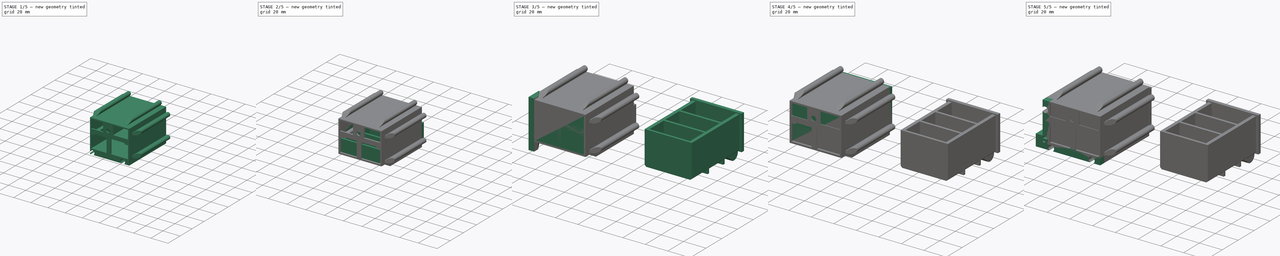
[diagram: build sequence overview — one tinted view per stage of 5, left to right]
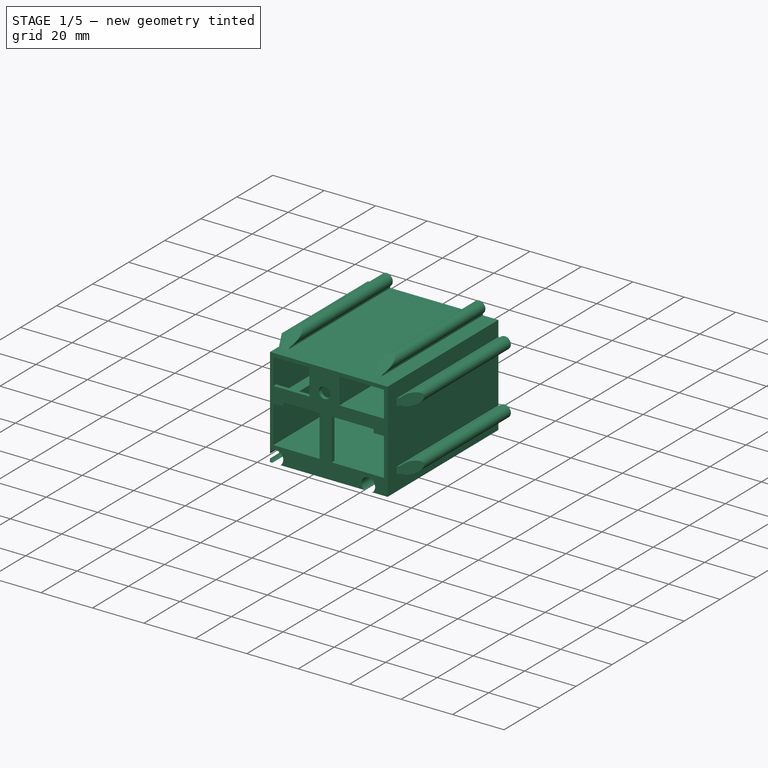
[diagram: stage 1 of 5 — iso view after this stage's code; geometry added in this stage tinted green]
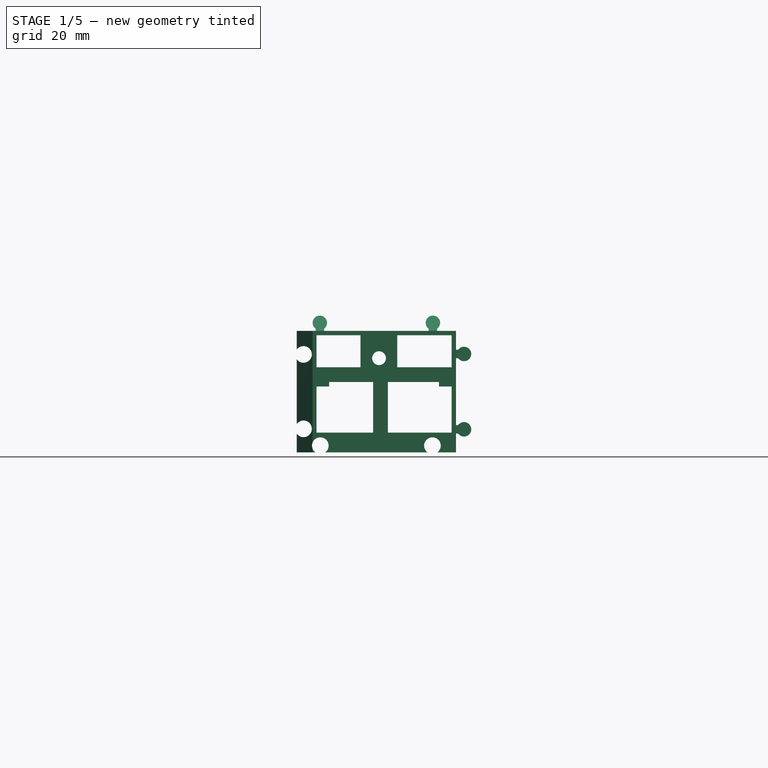
[diagram: stage 1 of 5 — front view after this stage's code; geometry added in this stage tinted green]
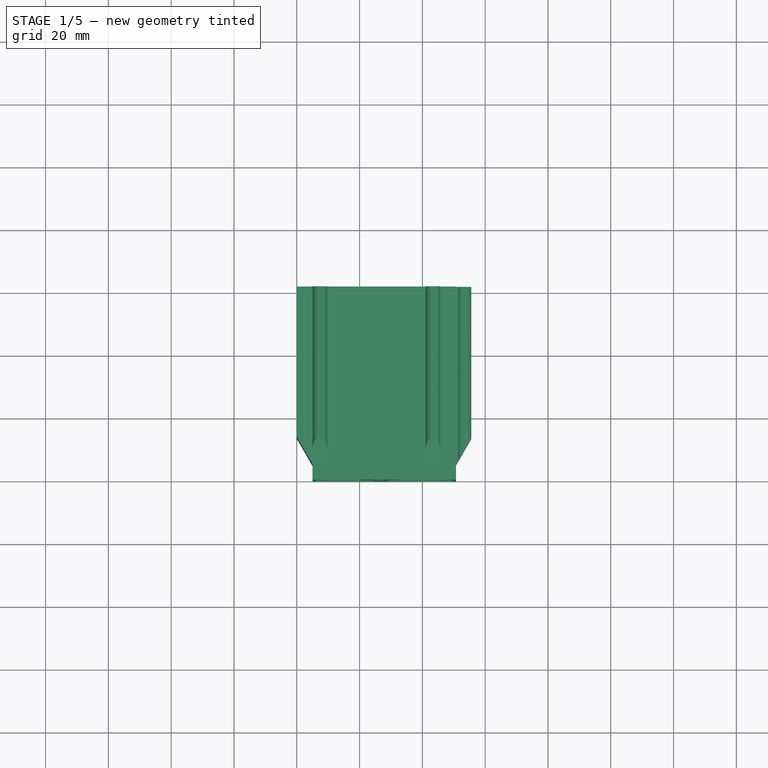
[diagram: stage 1 of 5 — top view after this stage's code; geometry added in this stage tinted green]
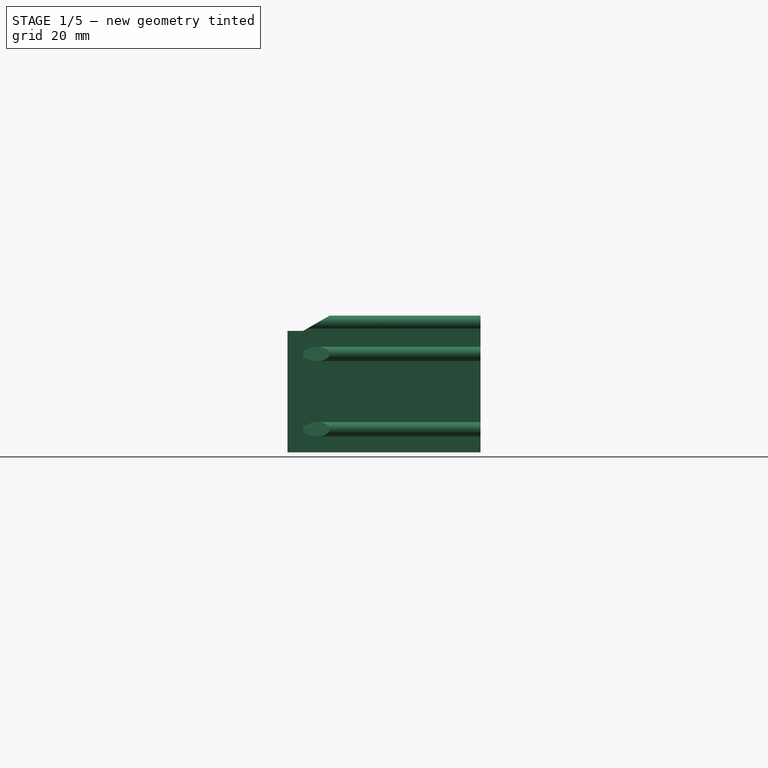
[diagram: stage 1 of 5 — right view after this stage's code; geometry added in this stage tinted green]
FCSTD DOCUMENT  (FreeCAD 0.18R4 (GitTag))
Label: базовый элемент
License: All rights reserved
LicenseURL: http://en.wikipedia.org/wiki/All_rights_reserved
objects: Part::Box×35, Part::Cut×21, Sketcher::SketchObject×19, Part::Extrusion×19, Part::MultiFuse×11, Part::Cylinder×9, Part::Chamfer×5
note: 119 computed .brp shape members not serialized (recipe doc carries the construction recipe); baked Part::Feature solids carry a one-line shape summary decoded from their .brp

FEATURE [Part::Box] Box009  label="Куб009"
  AttacherType = Attacher::AttachEngine3D
  Height = 4.7
  Length = 48
  Placement = pos=(2.2,0,22.4) rot=(0,0,1;0rad)
  Width = 1.5
FEATURE [Part::Box] Box010  label="Куб010"
  AttacherType = Attacher::AttachEngine3D
  Height = 4.7
  Length = 29
  Placement = pos=(29,0,7e-15) rot=(0,-1,0;1.5708rad)
  Width = 1.5
FEATURE [Sketcher::SketchObject] Sketch005
  Placement = pos=(0,0,0) rot=(0.57735,0.57735,0.57735;2.0944rad)
  sketch-geometry (4):
    g0: LineSegment StartX=0 StartY=38.7 StartZ=0 EndX=5 EndY=38.7 EndZ=0
    g1: LineSegment StartX=5 StartY=38.7 StartZ=0 EndX=13.6603 EndY=43.7 EndZ=0
    g2: LineSegment StartX=0 StartY=38.7 StartZ=0 EndX=0 EndY=43.7 EndZ=0
    g3: LineSegment StartX=0 StartY=43.7 StartZ=0 EndX=13.6603 EndY=43.7 EndZ=0
  constraints (12):
    c: DistanceX(g-1,g0) = 0
    c: Horizontal(g0)
    c: DistanceY(g-1,g0) = 38.7
    c: DistanceX(g0,g0) = 5
    c: Coincident(g1,g0)
    c: Angle(g1,g0) = 2.61799
    c: Vertical(g2)
    c: Coincident(g2,g0)
    c: Horizontal(g3)
    c: Coincident(g3,g2)
    c: Coincident(g3,g1)
    c: DistanceY(g2,g2) = 5
FEATURE [Sketcher::SketchObject] Sketch006
  Placement = pos=(0,0,0) rot=(0.57735,0.57735,0.57735;2.0944rad)
  sketch-geometry (4):
    g0: LineSegment StartX=0 StartY=38.7 StartZ=0 EndX=5 EndY=38.7 EndZ=0
    g1: LineSegment StartX=5 StartY=38.7 StartZ=0 EndX=13.6603 EndY=43.7 EndZ=0
    g2: LineSegment StartX=0 StartY=38.7 StartZ=0 EndX=0 EndY=43.7 EndZ=0
    g3: LineSegment StartX=0 StartY=43.7 StartZ=0 EndX=13.6603 EndY=43.7 EndZ=0
  constraints (12):
    c: DistanceX(g-1,g0) = 0
    c: Horizontal(g0)
    c: DistanceY(g-1,g0) = 38.7
    c: DistanceX(g0,g0) = 5
    c: Coincident(g1,g0)
    c: Angle(g1,g0) = 2.61799
    c: Vertical(g2)
    c: Coincident(g2,g0)
    c: Horizontal(g3)
    c: Coincident(g3,g2)
    c: Coincident(g3,g1)
    c: DistanceY(g2,g2) = 5
FEATURE [Sketcher::SketchObject] Sketch008
  Placement = pos=(0,0,0) rot=(1,0,0;1.5708rad)
  sketch-geometry (28):
    g0: LineSegment StartX=0 StartY=-4e-16 StartZ=0 EndX=0 EndY=5.95 EndZ=0
    g1: LineSegment StartX=0 StartY=9.05 StartZ=0 EndX=0 EndY=29.65 EndZ=0
    g2: LineSegment StartX=0 StartY=-4e-16 StartZ=0 EndX=5.95 EndY=-4e-16 EndZ=0
    g3: ArcOfCircle CenterX=2.14942 CenterY=7.5 CenterZ=0 NormalX=0 NormalY=0 NormalZ=1 AngleXU=0 Radius=2.65 StartAngle=3.76636 EndAngle=8.80001
    g4: ArcOfCircle CenterX=7.5 CenterY=2.14942 CenterZ=0 NormalX=0 NormalY=0 NormalZ=1 AngleXU=0 Radius=2.65 StartAngle=5.33715 EndAngle=10.3708
    g5: LineSegment StartX=9.05 StartY=0 StartZ=0 EndX=41.65 EndY=0 EndZ=0
    g6: ArcOfCircle CenterX=43.2 CenterY=2.14942 CenterZ=0 NormalX=0 NormalY=0 NormalZ=1 AngleXU=0 Radius=2.65 StartAngle=5.33715 EndAngle=10.3708
    g7: LineSegment StartX=44.75 StartY=0 StartZ=0 EndX=50.7 EndY=0 EndZ=0
    g8: LineSegment StartX=50.7 StartY=0 StartZ=0 EndX=50.7 EndY=6 EndZ=0
    g9: LineSegment StartX=50.7 StartY=6 StartZ=0 EndX=51.4 EndY=6 EndZ=0
    g10: LineSegment StartX=50.7 StartY=8.7 StartZ=0 EndX=51.4 EndY=8.7 EndZ=0
    g11: ArcOfCircle CenterX=53.2621 CenterY=7.35 CenterZ=0 NormalX=0 NormalY=0 NormalZ=1 AngleXU=0 Radius=2.3 StartAngle=3.76889 EndAngle=8.79748
    g12: LineSegment StartX=50.7 StartY=8.7 StartZ=0 EndX=50.7 EndY=30 EndZ=0
    g13: LineSegment StartX=50.7 StartY=30 StartZ=0 EndX=51.4 EndY=30 EndZ=0
    g14: LineSegment StartX=50.7 StartY=32.7 StartZ=0 EndX=51.4 EndY=32.7 EndZ=0
    g15: ArcOfCircle CenterX=53.2621 CenterY=31.35 CenterZ=0 NormalX=0 NormalY=0 NormalZ=1 AngleXU=0 Radius=2.3 StartAngle=3.76889 EndAngle=8.79748
    g16: LineSegment StartX=50.7 StartY=32.7 StartZ=0 EndX=50.7 EndY=38.7 EndZ=0
    g17: LineSegment StartX=50.7 StartY=38.7 StartZ=0 EndX=44.7 EndY=38.7 EndZ=0
    g18: LineSegment StartX=44.7 StartY=38.7 StartZ=0 EndX=44.7 EndY=39.4 EndZ=0
    g19: LineSegment StartX=42 StartY=38.7 StartZ=0 EndX=42 EndY=39.4 EndZ=0
    g20: ArcOfCircle CenterX=43.35 CenterY=41.2621 CenterZ=0 NormalX=0 NormalY=0 NormalZ=1 AngleXU=0 Radius=2.3 StartAngle=5.33968 EndAngle=10.3683
    g21: ArcOfCircle CenterX=2.14942 CenterY=31.2 CenterZ=0 NormalX=0 NormalY=0 NormalZ=1 AngleXU=0 Radius=2.65 StartAngle=3.76636 EndAngle=8.80001
    g22: LineSegment StartX=9e-16 StartY=32.75 StartZ=0 EndX=9e-16 EndY=38.7 EndZ=0
    g23: LineSegment StartX=9e-16 StartY=38.7 StartZ=0 EndX=6 EndY=38.7 EndZ=0
    g24: LineSegment StartX=6 StartY=38.7 StartZ=0 EndX=6 EndY=39.4 EndZ=0
    g25: LineSegment StartX=8.7 StartY=38.7 StartZ=0 EndX=8.7 EndY=39.4 EndZ=0
    g26: ArcOfCircle CenterX=7.35 CenterY=41.2621 CenterZ=0 NormalX=0 NormalY=0 NormalZ=1 AngleXU=0 Radius=2.3 StartAngle=5.33968 EndAngle=10.3683
    g27: LineSegment StartX=8.7 StartY=38.7 StartZ=0 EndX=42 EndY=38.7 EndZ=0
  constraints (91):
    c: Vertical(g0)
    c: DistanceY(g0,g0) = 5.95
    c: Coincident(g0,g-1)
    c: Vertical(g1)
    c: DistanceY(g1,g1) = 20.6
    c: Horizontal(g2)
    c: Coincident(g2,g0)
    c: Equal(g2,g0)
    c: DistanceX(g1) = 0
    c: Radius(g3) = 2.65
    c: DistanceY(g0,g1) = 3.1
    c: DistanceY(g2,g5) = 0
    c: Radius(g4) = 2.65
    c: Horizontal(g5)
    c: DistanceX(g2,g5) = 3.1
    c: DistanceX(g5,g5) = 32.6
    c: DistanceX(g5,g7) = 3.1
    c: DistanceY(g5,g7) = 0
    c: Radius(g6) = 2.65
    c: Horizontal(g7)
    c: Equal(g7,g2)
    c: Vertical(g8)
    c: Coincident(g7,g8)
    c: Horizontal(g9)
    c: Coincident(g8,g9)
    c: DistanceX(g9,g9) = 0.7
    c: Equal(g10,g9)
    c: Horizontal(g10)
    c: DistanceX(g8,g10) = 0
    c: DistanceY(g8,g10) = 2.7
    c: Coincident(g11,g10)
    c: Coincident(g11,g9)
    c: Radius(g11) = 2.3
    c: Vertical(g12)
    c: Coincident(g12,g10)
    c: Horizontal(g13)
    c: Coincident(g13,g12)
    c: Equal(g10,g13)
    c: Horizontal(g14)
    c: Equal(g13,g14)
    c: DistanceX(g14,g12) = 0
    c: DistanceY(g13,g14) = 2.7
    c: Coincident(g14,g15)
    c: Coincident(g15,g13)
    c: Radius(g15) = 2.3
    c: Vertical(g16)
    c: Coincident(g16,g14)
    c: Equal(g16,g8)
    c: Coincident(g17,g16)
    c: Horizontal(g17)
    c: Vertical(g18)
    c: Equal(g18,g14)
    c: Coincident(g17,g18)
    c: Vertical(g19)
    c: Equal(g19,g18)
    c: DistanceY(g17,g19) = 0
    c: DistanceX(g19,g18) = 2.7
    c: Coincident(g20,g18)
    c: Coincident(g20,g19)
    c: Radius(g20) = 2.3
    c: DistanceX(g1,g22) = 0
    c: DistanceY(g21,g21) = 3.1
    c: Radius(g21) = 2.65
    c: Vertical(g22)
    c: Equal(g22,g0)
    c: Horizontal(g23)
    c: Coincident(g23,g22)
    c: Equal(g23,g17)
    c: Vertical(g24)
    c: Vertical(g25)
    c: Coincident(g24,g23)
    c: Equal(g24,g25)
    c: Equal(g24,g19)
    c: DistanceY(g23,g25) = 0
    c: DistanceX(g24,g25) = 2.7
    c: Coincident(g26,g24)
    c: Coincident(g26,g25)
    c: Radius(g26) = 2.3
    c: DistanceY(g12,g12) = 21.3
    c: Coincident(g27,g25)
    c: Coincident(g27,g19)
    c: Coincident(g6,g5)
    c: Coincident(g6,g7)
    c: Coincident(g4,g5)
    c: Coincident(g4,g2)
    c: Coincident(g3,g1)
    c: Coincident(g3,g0)
    c: Coincident(g21,g1)
    c: Coincident(g21,g22)
    c: DistanceY(g8,g8) = 6
    c: Equal(g17,g16)
FEATURE [Part::Extrusion] Extrude005
  Base = -> Sketch008
  Dir = (0,1,0)
  DirMode = 0
  FaceMakerClass = Part::FaceMakerBullseye
  LengthFwd = 61.5
  LengthRev = 0
  Solid = true
  Symmetric = false
FEATURE [Sketcher::SketchObject] Sketch007
  ExternalGeometry = -> [Extrude005]
  Placement = pos=(0,0,0) rot=(1,0,0;1.5708rad)
  sketch-geometry (4):
    g0: LineSegment StartX=6.3 StartY=6.3 StartZ=0 EndX=6.3 EndY=37.3 EndZ=0
    g1: LineSegment StartX=6.3 StartY=6.3 StartZ=0 EndX=49.3 EndY=6.3 EndZ=0
    g2: LineSegment StartX=49.3 StartY=6.3 StartZ=0 EndX=49.3 EndY=37.3 EndZ=0
    g3: LineSegment StartX=6.3 StartY=37.3 StartZ=0 EndX=49.3 EndY=37.3 EndZ=0
FEATURE [Part::Extrusion] Extrude006
  Base = -> Sketch007
  Dir = (0,1,0)
  DirMode = 0
  FaceMakerClass = Part::FaceMakerBullseye
  LengthFwd = 61.5
  LengthRev = 0
  Solid = true
  Symmetric = false
FEATURE [Part::Cylinder] Cylinder002  label="Цилиндр002"
  Angle = 360
  AttacherType = Attacher::AttachEngine3D
  Height = 10
  Placement = pos=(26.2,3,34) rot=(-1,0,0;1.5708rad)
  Radius = 6
FEATURE [Part::Extrusion] Extrude007
  Base = -> Sketch006
  Dir = (1,0,0)
  DirMode = 0
  FaceMakerClass = Part::FaceMakerBullseye
  LengthFwd = 48.7
  LengthRev = 0
  Solid = true
  Symmetric = false
FEATURE [Part::Extrusion] Extrude008
  Base = -> Sketch005
  Dir = (1,0,0)
  DirMode = 0
  FaceMakerClass = Part::FaceMakerBullseye
  LengthFwd = 48.7
  LengthRev = 0
  Placement = pos=(12,0,41) rot=(0,1,0;1.5708rad)
  Solid = true
  Symmetric = false
FEATURE [Part::Cylinder] Cylinder003  label="Цилиндр003"
  Angle = 360
  AttacherType = Attacher::AttachEngine3D
  Height = 10
  Placement = pos=(26.2,-4,34) rot=(-1,0,0;1.5708rad)
  Radius = 2.2
FEATURE [Part::Box] Box011  label="Куб011"
  AttacherType = Attacher::AttachEngine3D
  Height = 11.7
  Length = 13
  Placement = pos=(32,0,25) rot=(0,-1,0;1.5708rad)
  Width = 1.5
FEATURE [Part::MultiFuse] Fusion003
  Placement = pos=(0,0,-4) rot=(0,0,1;0rad)
  Shapes = -> [Cylinder003,Cylinder002]
FEATURE [Part::Cut] Cut006
  Base = -> Extrude005
  Tool = -> Extrude006
FEATURE [Part::Cut] Cut007
  Base = -> Cut006
  Tool = -> Extrude007
FEATURE [Part::Cut] Cut005
  Base = -> Cut007
  Tool = -> Extrude008
FEATURE [Part::MultiFuse] Fusion004
  Shapes = -> [Cut005,Box010,Box009,Box011]
FEATURE [Part::Cut] Cut004  label="Базовый элемент последний"
  Base = -> Fusion004
  Tool = -> Fusion003
FEATURE [Part::Box] Box033  label="Куб033"
  AttacherType = Attacher::AttachEngine3D
  Height = 2
  Length = 4
  Placement = pos=(6.3,0,21) rot=(0,0,1;0rad)
  Width = 61
FEATURE [Part::Box] Box034  label="Куб034"
  AttacherType = Attacher::AttachEngine3D
  Height = 2
  Length = 4
  Placement = pos=(45.3,0,21) rot=(0,0,1;0rad)
  Width = 61
FEATURE [Part::MultiFuse] Fusion017
  Shapes = -> [Cut004,Box034,Box033]
FEATURE [Sketcher::SketchObject] Sketch017
  Placement = pos=(0,0,0) rot=(0.57735,0.57735,0.57735;2.0944rad)
  sketch-geometry (4):
    g0: LineSegment StartX=0 StartY=38.7 StartZ=0 EndX=5 EndY=38.7 EndZ=0
    g1: LineSegment StartX=5 StartY=38.7 StartZ=0 EndX=13.6603 EndY=43.7 EndZ=0
    g2: LineSegment StartX=0 StartY=38.7 StartZ=0 EndX=0 EndY=43.7 EndZ=0
    g3: LineSegment StartX=0 StartY=43.7 StartZ=0 EndX=13.6603 EndY=43.7 EndZ=0
  constraints (12):
    c: DistanceX(g-1,g0) = 0
    c: Horizontal(g0)
    c: DistanceY(g-1,g0) = 38.7
    c: DistanceX(g0,g0) = 5
    c: Coincident(g1,g0)
    c: Angle(g1,g0) = 2.61799
    c: Vertical(g2)
    c: Coincident(g2,g0)
    c: Horizontal(g3)
    c: Coincident(g3,g2)
    c: Coincident(g3,g1)
    c: DistanceY(g2,g2) = 5
FEATURE [Part::Extrusion] Extrude017
  Base = -> Sketch017
  Dir = (1,0,0)
  DirMode = 0
  FaceMakerClass = Part::FaceMakerBullseye
  LengthFwd = 48.7
  LengthRev = 0
  Placement = pos=(43.7,0,-4.3) rot=(0,-1,0;1.5708rad)
  Solid = true
  Symmetric = false
FEATURE [Part::Cut] Cut019
  Base = -> Fusion017
  Tool = -> Extrude017
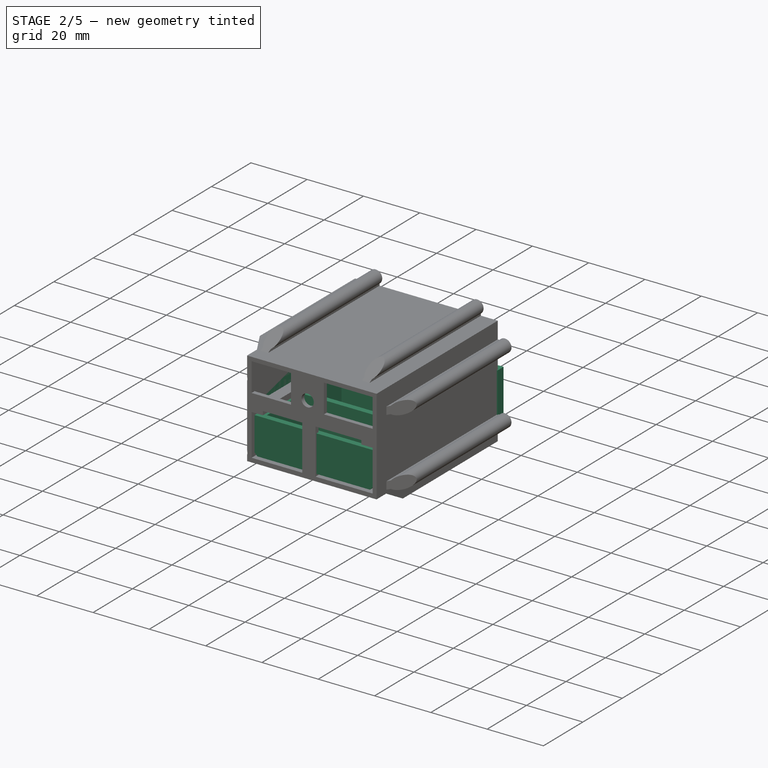
[diagram: stage 2 of 5 — iso view after this stage's code; geometry added in this stage tinted green]
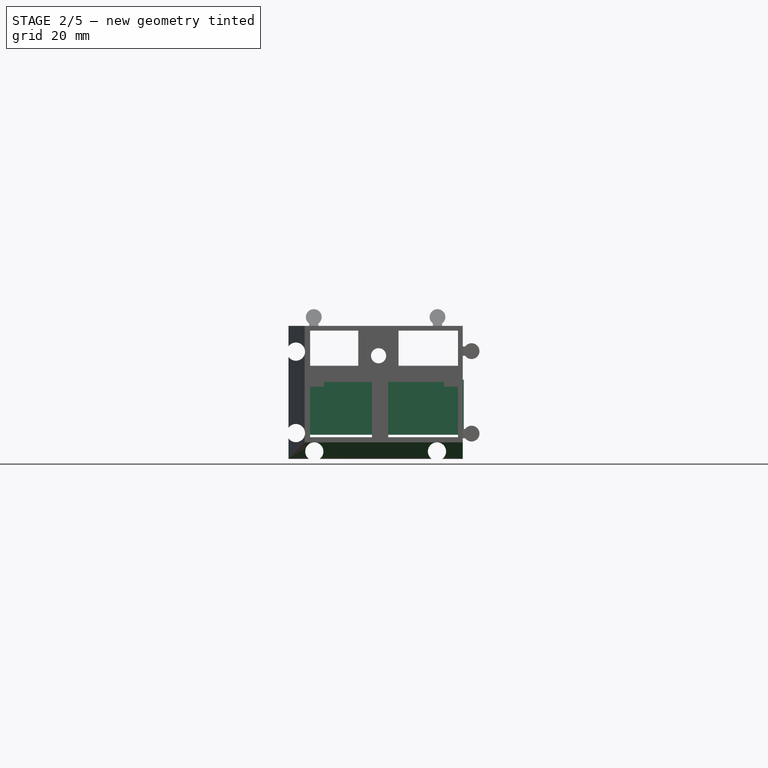
[diagram: stage 2 of 5 — front view after this stage's code; geometry added in this stage tinted green]
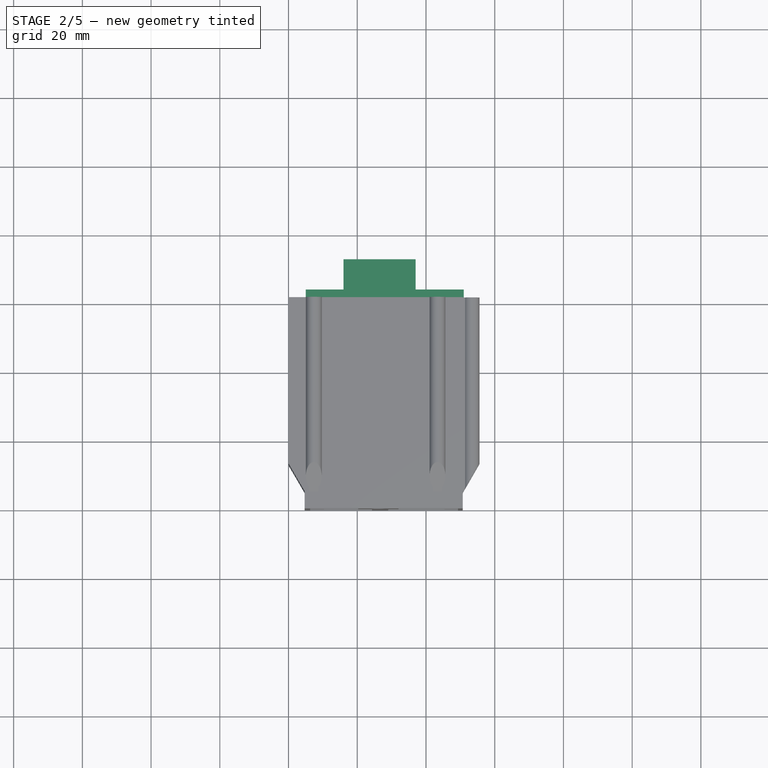
[diagram: stage 2 of 5 — top view after this stage's code; geometry added in this stage tinted green]
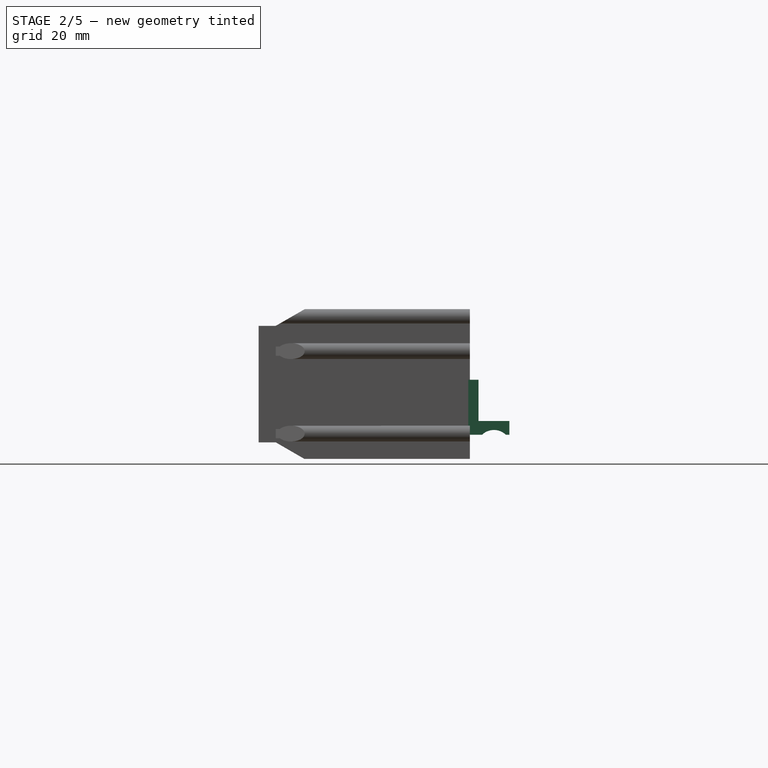
[diagram: stage 2 of 5 — right view after this stage's code; geometry added in this stage tinted green]
FEATURE [Part::Box] Box018  label="Куб018"
  AttacherType = Attacher::AttachEngine3D
  Height = 13
  Length = 42
  Placement = pos=(7,0.5,7) rot=(0,0,1;0rad)
  Width = 2
FEATURE [Part::Box] Box032  label="Куб032"
  AttacherType = Attacher::AttachEngine3D
  Height = 11.6
  Length = 36
  Placement = pos=(10,20.5,8.4) rot=(0,0,1;0rad)
  Width = 2
FEATURE [Part::Box] Box031  label="Куб031"
  AttacherType = Attacher::AttachEngine3D
  Height = 11.6
  Length = 36
  Placement = pos=(10,40.3,8.4) rot=(0,0,1;0rad)
  Width = 2
FEATURE [Part::Box] Box015  label="Куб015"
  AttacherType = Attacher::AttachEngine3D
  Height = 11.5
  Length = 3
  Placement = pos=(7,2.5,8.5) rot=(0,0,1;0rad)
  Width = 58.5
FEATURE [Part::Box] Box017  label="Куб017"
  AttacherType = Attacher::AttachEngine3D
  Height = 11.5
  Length = 3
  Placement = pos=(46,2.5,8.5) rot=(0,0,1;0rad)
  Width = 58.5
FEATURE [Part::Cylinder] Cylinder008  label="Цилиндр008"
  Angle = 360
  AttacherType = Attacher::AttachEngine3D
  Height = 24
  Placement = pos=(14.9,68.5,3.4) rot=(0,1,0;1.5708rad)
  Radius = 5
FEATURE [Part::Box] Box020  label="Куб020"
  AttacherType = Attacher::AttachEngine3D
  Height = 4
  Length = 21
  Placement = pos=(16,63,7) rot=(0,0,1;0rad)
  Width = 10
FEATURE [Part::Cut] Cut015
  Base = -> Box020
  Tool = -> Cylinder008
FEATURE [Part::Box] Box016  label="Куб016"
  AttacherType = Attacher::AttachEngine3D
  Height = 1.5
  Length = 42
  Placement = pos=(7,2.5,7) rot=(0,0,1;0rad)
  Width = 58.5
FEATURE [Part::Box] Box019  label="Куб019"
  AttacherType = Attacher::AttachEngine3D
  Height = 16
  Length = 46
  Placement = pos=(5,61,7) rot=(0,0,1;0rad)
  Width = 3
FEATURE [Part::Chamfer] Chamfer003
  Base = -> Box016
  Edges = 2 edges r=1: [Edge4,Edge8]
FEATURE [Part::Chamfer] Chamfer004
  Base = -> Box018
  Edges = 2 edges r=1: [Edge4,Edge8]
FEATURE [Sketcher::SketchObject] Sketch015
  Placement = pos=(0,0,0) rot=(0.57735,0.57735,0.57735;2.0944rad)
  sketch-geometry (4):
    g0: LineSegment StartX=0 StartY=38.7 StartZ=0 EndX=5 EndY=38.7 EndZ=0
    g1: LineSegment StartX=5 StartY=38.7 StartZ=0 EndX=13.6603 EndY=43.7 EndZ=0
    g2: LineSegment StartX=0 StartY=38.7 StartZ=0 EndX=0 EndY=43.7 EndZ=0
    g3: LineSegment StartX=0 StartY=43.7 StartZ=0 EndX=13.6603 EndY=43.7 EndZ=0
  constraints (12):
    c: DistanceX(g-1,g0) = 0
    c: Horizontal(g0)
    c: DistanceY(g-1,g0) = 38.7
    c: DistanceX(g0,g0) = 5
    c: Coincident(g1,g0)
    c: Angle(g1,g0) = 2.61799
    c: Vertical(g2)
    c: Coincident(g2,g0)
    c: Horizontal(g3)
    c: Coincident(g3,g2)
    c: Coincident(g3,g1)
    c: DistanceY(g2,g2) = 5
FEATURE [Part::Extrusion] Extrude015
  Base = -> Sketch015
  Dir = (1,0,0)
  DirMode = 0
  FaceMakerClass = Part::FaceMakerBullseye
  LengthFwd = 48.7
  LengthRev = 0
  Placement = pos=(43.4,0,-5.9) rot=(0,-1,0;1.5708rad)
  Solid = true
  Symmetric = false
FEATURE [Sketcher::SketchObject] Sketch016
  Placement = pos=(0,0,0) rot=(0.57735,0.57735,0.57735;2.0944rad)
  sketch-geometry (4):
    g0: LineSegment StartX=0 StartY=38.7 StartZ=0 EndX=5 EndY=38.7 EndZ=0
    g1: LineSegment StartX=5 StartY=38.7 StartZ=0 EndX=13.6603 EndY=43.7 EndZ=0
    g2: LineSegment StartX=0 StartY=38.7 StartZ=0 EndX=0 EndY=43.7 EndZ=0
    g3: LineSegment StartX=0 StartY=43.7 StartZ=0 EndX=13.6603 EndY=43.7 EndZ=0
  constraints (12):
    c: DistanceX(g-1,g0) = 0
    c: Horizontal(g0)
    c: DistanceY(g-1,g0) = 38.7
    c: DistanceX(g0,g0) = 5
    c: Coincident(g1,g0)
    c: Angle(g1,g0) = 2.61799
    c: Vertical(g2)
    c: Coincident(g2,g0)
    c: Horizontal(g3)
    c: Coincident(g3,g2)
    c: Coincident(g3,g1)
    c: DistanceY(g2,g2) = 5
FEATURE [Part::Extrusion] Extrude016
  Base = -> Sketch016
  Dir = (1,0,0)
  DirMode = 0
  FaceMakerClass = Part::FaceMakerBullseye
  LengthFwd = 70
  LengthRev = 0
  Placement = pos=(54.4,0,43.5) rot=(0,1,0;3.14159rad)
  Solid = true
  Symmetric = false
FEATURE [Part::Cut] Cut016
  Base = -> Cut004
  Tool = -> Extrude008
FEATURE [Part::Cut] Cut017
  Base = -> Cut016
  Tool = -> Extrude015
FEATURE [Part::Cut] Cut018
  Base = -> Cut017
  Tool = -> Extrude016
FEATURE [Sketcher::SketchObject] Sketch018
  Placement = pos=(0,0,0) rot=(0.57735,0.57735,0.57735;2.0944rad)
  sketch-geometry (4):
    g0: LineSegment StartX=0 StartY=38.7 StartZ=0 EndX=5 EndY=38.7 EndZ=0
    g1: LineSegment StartX=5 StartY=38.7 StartZ=0 EndX=13.6603 EndY=43.7 EndZ=0
    g2: LineSegment StartX=0 StartY=38.7 StartZ=0 EndX=0 EndY=43.7 EndZ=0
    g3: LineSegment StartX=0 StartY=43.7 StartZ=0 EndX=13.6603 EndY=43.7 EndZ=0
  constraints (12):
    c: DistanceX(g-1,g0) = 0
    c: Horizontal(g0)
    c: DistanceY(g-1,g0) = 38.7
    c: DistanceX(g0,g0) = 5
    c: Coincident(g1,g0)
    c: Angle(g1,g0) = 2.61799
    c: Vertical(g2)
    c: Coincident(g2,g0)
    c: Horizontal(g3)
    c: Coincident(g3,g2)
    c: Coincident(g3,g1)
    c: DistanceY(g2,g2) = 5
FEATURE [Part::Extrusion] Extrude018
  Base = -> Sketch018
  Dir = (1,0,0)
  DirMode = 0
  FaceMakerClass = Part::FaceMakerBullseye
  LengthFwd = 60
  LengthRev = 0
  Placement = pos=(51.9986,0,43.6432) rot=(0,1,0;3.14159rad)
  Solid = true
  Symmetric = false
FEATURE [Part::Cut] Cut020
  Base = -> Cut019
  Tool = -> Extrude018
FEATURE [Part::Chamfer] Chamfer005
  Base = -> Cut020
  Edges = 17 edges r=0.3: [Edge38,Edge39,Edge40,Edge41,Edge42,Edge43,Edge44,Edge45,Edge46,Edge47,Edge48,Edge49,Edge50,Edge74,Edge94,Edge100,Edge126]
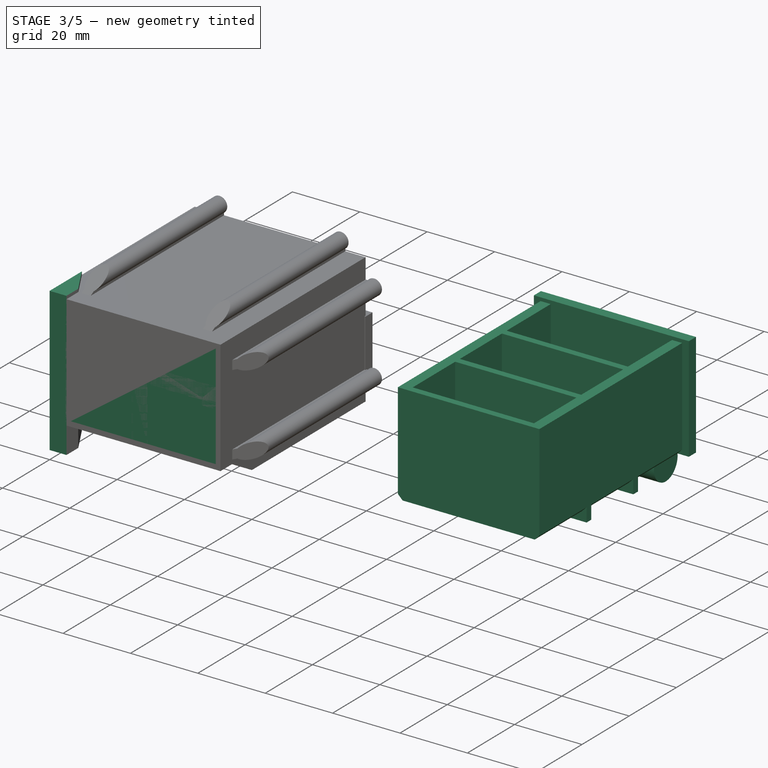
[diagram: stage 3 of 5 — iso view after this stage's code; geometry added in this stage tinted green]
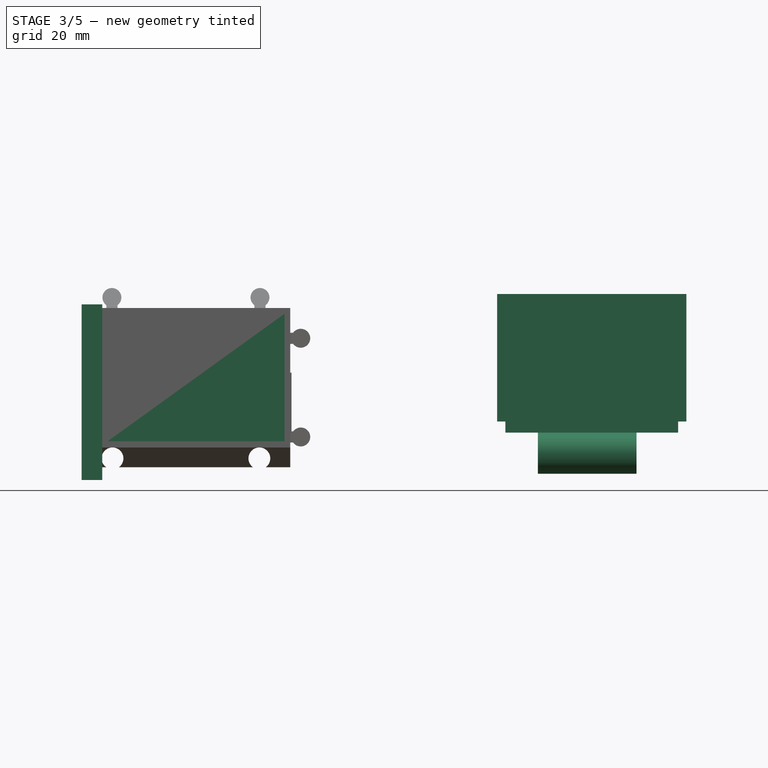
[diagram: stage 3 of 5 — front view after this stage's code; geometry added in this stage tinted green]
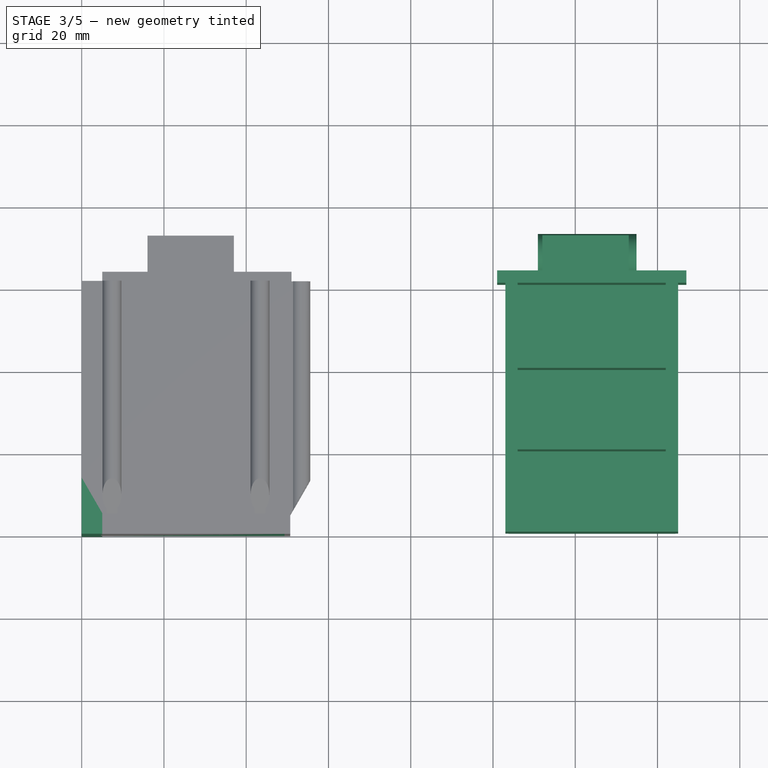
[diagram: stage 3 of 5 — top view after this stage's code; geometry added in this stage tinted green]
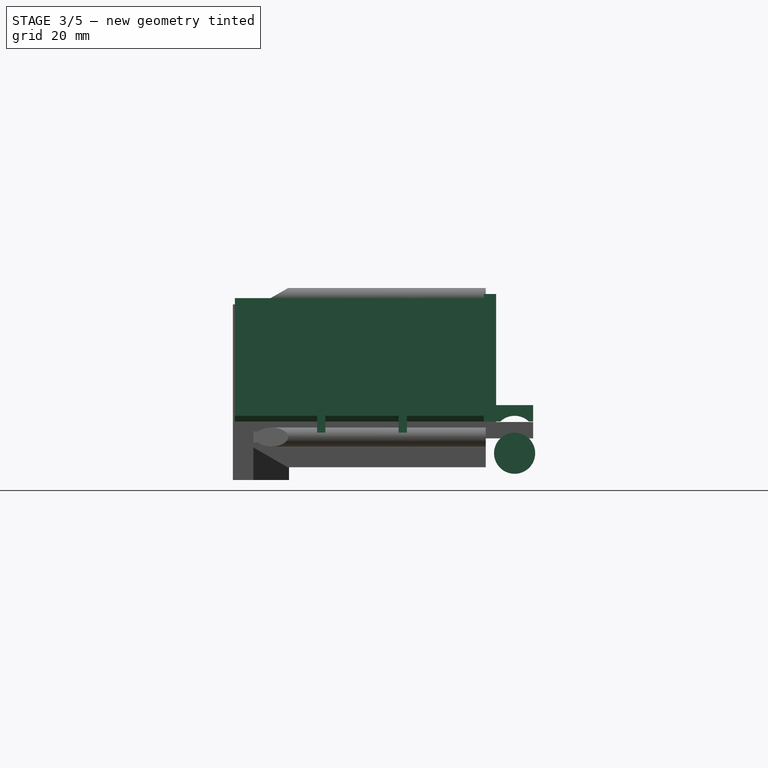
[diagram: stage 3 of 5 — right view after this stage's code; geometry added in this stage tinted green]
FEATURE [Part::Extrusion] Extrude011
  Base = -> Sketch012
  Dir = (0,1,0)
  DirMode = 0
  FaceMakerClass = Part::FaceMakerBullseye
  LengthFwd = 61.5
  LengthRev = 0
  Solid = true
  Symmetric = false
FEATURE [Sketcher::SketchObject] Sketch011
  ExternalGeometry = -> [Extrude011]
  Placement = pos=(0,0,0) rot=(1,0,0;1.5708rad)
  sketch-geometry (4):
    g0: LineSegment StartX=6.3 StartY=6.3 StartZ=0 EndX=6.3 EndY=37.3 EndZ=0
    g1: LineSegment StartX=6.3 StartY=6.3 StartZ=0 EndX=49.3 EndY=6.3 EndZ=0
    g2: LineSegment StartX=49.3 StartY=6.3 StartZ=0 EndX=49.3 EndY=37.3 EndZ=0
    g3: LineSegment StartX=6.3 StartY=37.3 StartZ=0 EndX=49.3 EndY=37.3 EndZ=0
FEATURE [Part::Extrusion] Extrude010
  Base = -> Sketch011
  Dir = (0,1,0)
  DirMode = 0
  FaceMakerClass = Part::FaceMakerBullseye
  LengthFwd = 61.5
  LengthRev = 0
  Solid = true
  Symmetric = false
FEATURE [Sketcher::SketchObject] Sketch014
  Placement = pos=(0,0,0) rot=(0.57735,0.57735,0.57735;2.0944rad)
  sketch-geometry (4):
    g0: LineSegment StartX=0 StartY=38.7 StartZ=0 EndX=5 EndY=38.7 EndZ=0
    g1: LineSegment StartX=5 StartY=38.7 StartZ=0 EndX=13.6603 EndY=43.7 EndZ=0
    g2: LineSegment StartX=0 StartY=38.7 StartZ=0 EndX=0 EndY=43.7 EndZ=0
    g3: LineSegment StartX=0 StartY=43.7 StartZ=0 EndX=13.6603 EndY=43.7 EndZ=0
  constraints (12):
    c: DistanceX(g-1,g0) = 0
    c: Horizontal(g0)
    c: DistanceY(g-1,g0) = 38.7
    c: DistanceX(g0,g0) = 5
    c: Coincident(g1,g0)
    c: Angle(g1,g0) = 2.61799
    c: Vertical(g2)
    c: Coincident(g2,g0)
    c: Horizontal(g3)
    c: Coincident(g3,g2)
    c: Coincident(g3,g1)
    c: DistanceY(g2,g2) = 5
FEATURE [Part::Extrusion] Extrude014
  Base = -> Sketch014
  Dir = (1,0,0)
  DirMode = 0
  FaceMakerClass = Part::FaceMakerBullseye
  LengthFwd = 42.7
  LengthRev = 0
  Placement = pos=(43.7,0,-3.1) rot=(0,-1,0;1.5708rad)
  Solid = true
  Symmetric = false
FEATURE [Part::Box] Box021  label="Куб021"
  AttacherType = Attacher::AttachEngine3D
  Height = 28.6
  Length = 42
  Placement = pos=(103,20.5,8.4) rot=(0,0,1;0rad)
  Width = 2
FEATURE [Part::Box] Box022  label="Куб022"
  AttacherType = Attacher::AttachEngine3D
  Height = 28.6
  Length = 42
  Placement = pos=(103,40.3,8.4) rot=(0,0,1;0rad)
  Width = 2
FEATURE [Part::Cylinder] Cylinder006  label="Цилиндр006"
  Angle = 360
  AttacherType = Attacher::AttachEngine3D
  Height = 24
  Placement = pos=(110.9,68.5,3.4) rot=(0,1,0;1.5708rad)
  Radius = 5
FEATURE [Part::Box] Box023  label="Куб023"
  AttacherType = Attacher::AttachEngine3D
  Height = 30
  Length = 3
  Placement = pos=(46,2,7) rot=(0,0,1;0rad)
  Width = 60
FEATURE [Part::Box] Box024  label="Куб024"
  AttacherType = Attacher::AttachEngine3D
  Height = 30
  Length = 3
  Placement = pos=(7,2,7) rot=(0,0,1;0rad)
  Width = 60
FEATURE [Part::Box] Box025  label="Куб025"
  AttacherType = Attacher::AttachEngine3D
  Height = 1.5
  Length = 42
  Placement = pos=(7,2,7) rot=(0,0,1;0rad)
  Width = 60
FEATURE [Part::Box] Box026  label="Куб026"
  AttacherType = Attacher::AttachEngine3D
  Height = 30
  Length = 42
  Placement = pos=(7,0.5,7) rot=(0,0,1;0rad)
  Width = 2
FEATURE [Part::Box] Box027  label="Куб027"
  AttacherType = Attacher::AttachEngine3D
  Height = 31
  Length = 46
  Placement = pos=(5,61,7) rot=(0,0,1;0rad)
  Width = 3
FEATURE [Part::Box] Box028  label="Куб028"
  AttacherType = Attacher::AttachEngine3D
  Height = 4
  Length = 21
  Placement = pos=(16,63,7) rot=(0,0,1;0rad)
  Width = 10
FEATURE [Part::MultiFuse] Fusion010
  Placement = pos=(96,0,0) rot=(0,0,1;0rad)
  Shapes = -> [Box023,Box025,Box024,Box026,Box027,Box028]
FEATURE [Part::Chamfer] Chamfer002
  Base = -> Fusion010
  Edges = 6 edges r=1.4: [Edge3,Edge10,Edge14,Edge16,Edge18,Edge39]
FEATURE [Part::Box] Box029  label="Куб029"
  AttacherType = Attacher::AttachEngine3D
  Height = 28.6
  Length = 42
  Placement = pos=(103,20.5,8.4) rot=(0,0,1;0rad)
  Width = 2
FEATURE [Part::Box] Box030  label="Куб030"
  AttacherType = Attacher::AttachEngine3D
  Height = 28.6
  Length = 42
  Placement = pos=(103,40.3,8.4) rot=(0,0,1;0rad)
  Width = 2
FEATURE [Part::MultiFuse] Fusion009
  Shapes = -> [Chamfer002,Box030,Box029]
FEATURE [Part::Cylinder] Cylinder007  label="Цилиндр007"
  Angle = 360
  AttacherType = Attacher::AttachEngine3D
  Height = 24
  Placement = pos=(110.9,68.5,3.4) rot=(0,1,0;1.5708rad)
  Radius = 5
FEATURE [Part::Cut] Cut014
  Base = -> Fusion009
  Placement = pos=(0,0,4.1) rot=(0,0,1;0rad)
  Tool = -> Cylinder007
FEATURE [Part::MultiFuse] Fusion016
  Shapes = -> [Box019,Cut015,Box015,Box017,Chamfer003,Box032,Box031,Chamfer004]
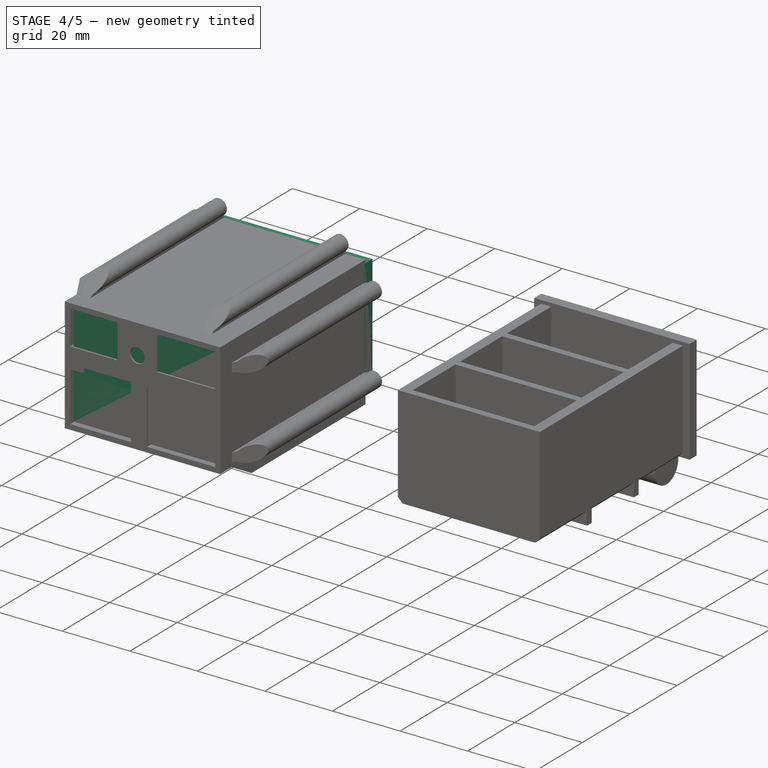
[diagram: stage 4 of 5 — iso view after this stage's code; geometry added in this stage tinted green]
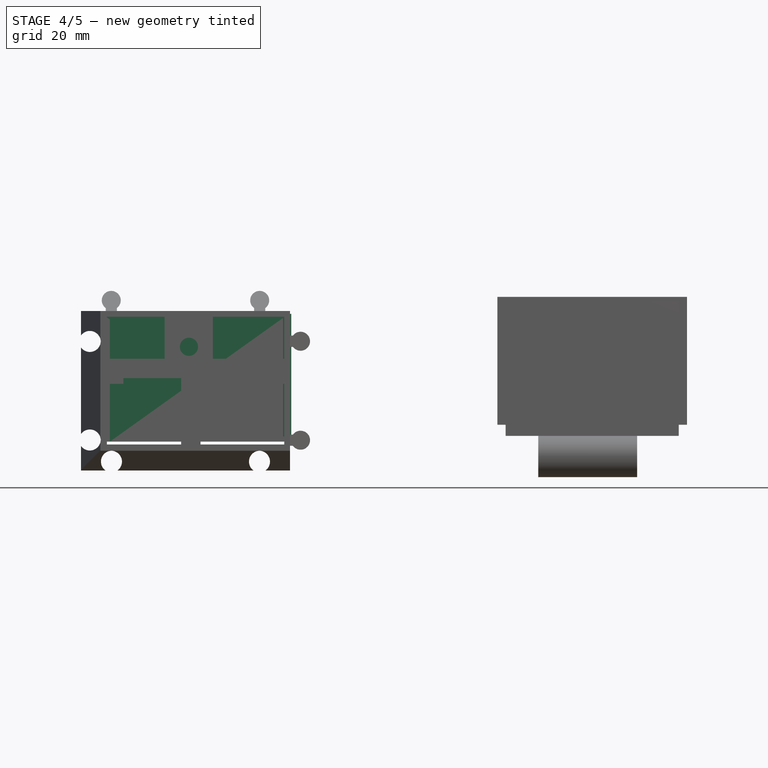
[diagram: stage 4 of 5 — front view after this stage's code; geometry added in this stage tinted green]
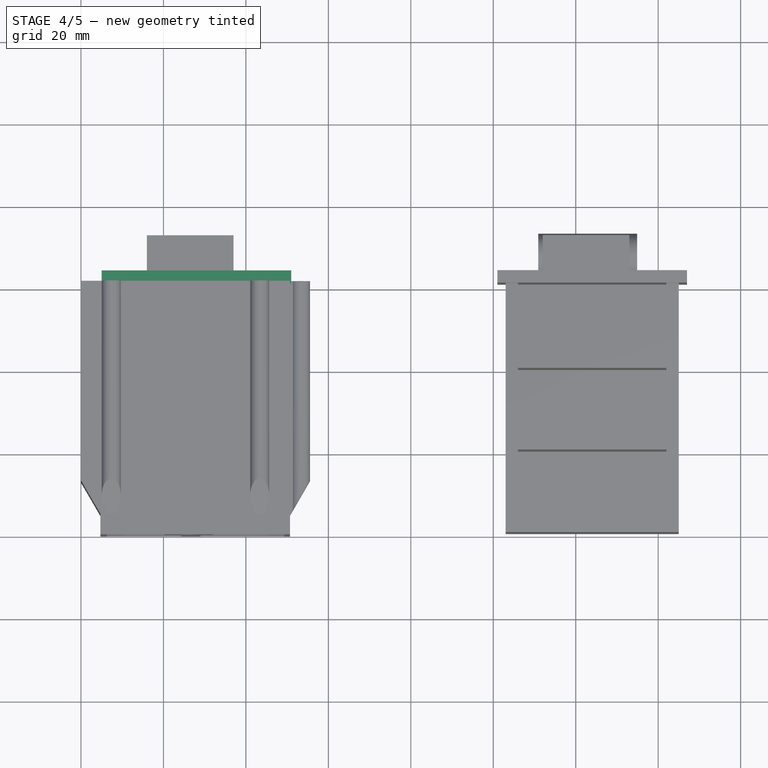
[diagram: stage 4 of 5 — top view after this stage's code; geometry added in this stage tinted green]
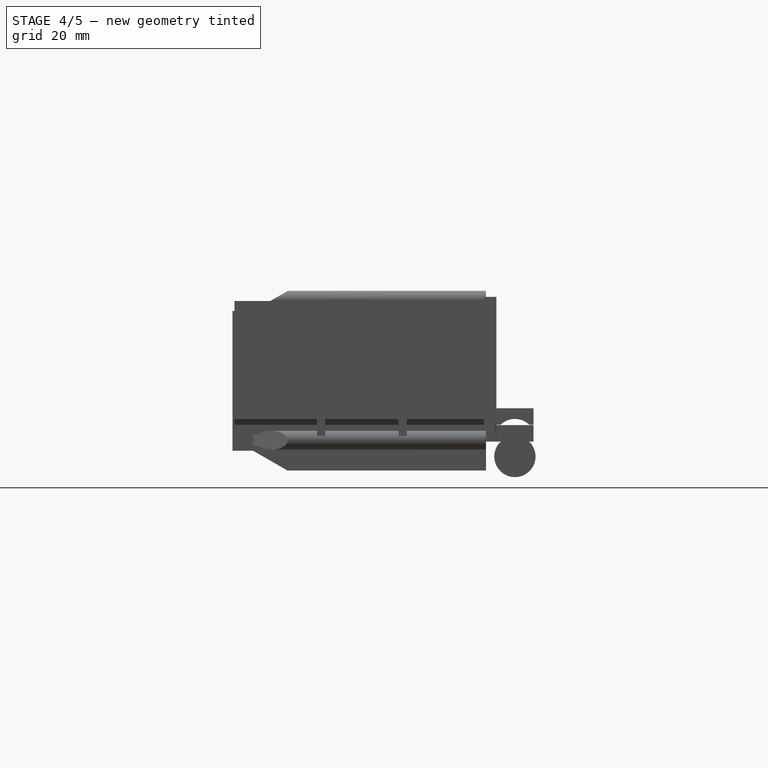
[diagram: stage 4 of 5 — right view after this stage's code; geometry added in this stage tinted green]
FEATURE [Part::Box] Box005  label="Куб005"
  AttacherType = Attacher::AttachEngine3D
  Height = 30
  Length = 3
  Placement = pos=(46,2,7) rot=(0,0,1;0rad)
  Width = 60
FEATURE [Part::Box] Box006  label="Куб006"
  AttacherType = Attacher::AttachEngine3D
  Height = 30
  Length = 42
  Placement = pos=(7,0.5,7) rot=(0,0,1;0rad)
  Width = 2
FEATURE [Part::Box] Box007  label="Куб007"
  AttacherType = Attacher::AttachEngine3D
  Height = 31
  Length = 46
  Placement = pos=(5,61,7) rot=(0,0,1;0rad)
  Width = 3
FEATURE [Part::Box] Box008  label="Куб008"
  AttacherType = Attacher::AttachEngine3D
  Height = 4
  Length = 21
  Placement = pos=(16,63,7) rot=(0,0,1;0rad)
  Width = 10
FEATURE [Sketcher::SketchObject] Sketch009
  Placement = pos=(0,0,0) rot=(0.57735,0.57735,0.57735;2.0944rad)
  sketch-geometry (4):
    g0: LineSegment StartX=0 StartY=38.7 StartZ=0 EndX=5 EndY=38.7 EndZ=0
    g1: LineSegment StartX=5 StartY=38.7 StartZ=0 EndX=13.6603 EndY=43.7 EndZ=0
    g2: LineSegment StartX=0 StartY=38.7 StartZ=0 EndX=0 EndY=43.7 EndZ=0
    g3: LineSegment StartX=0 StartY=43.7 StartZ=0 EndX=13.6603 EndY=43.7 EndZ=0
  constraints (12):
    c: DistanceX(g-1,g0) = 0
    c: Horizontal(g0)
    c: DistanceY(g-1,g0) = 38.7
    c: DistanceX(g0,g0) = 5
    c: Coincident(g1,g0)
    c: Angle(g1,g0) = 2.61799
    c: Vertical(g2)
    c: Coincident(g2,g0)
    c: Horizontal(g3)
    c: Coincident(g3,g2)
    c: Coincident(g3,g1)
    c: DistanceY(g2,g2) = 5
FEATURE [Sketcher::SketchObject] Sketch010
  Placement = pos=(0,0,0) rot=(0.57735,0.57735,0.57735;2.0944rad)
  sketch-geometry (4):
    g0: LineSegment StartX=0 StartY=38.7 StartZ=0 EndX=5 EndY=38.7 EndZ=0
    g1: LineSegment StartX=5 StartY=38.7 StartZ=0 EndX=13.6603 EndY=43.7 EndZ=0
    g2: LineSegment StartX=0 StartY=38.7 StartZ=0 EndX=0 EndY=43.7 EndZ=0
    g3: LineSegment StartX=0 StartY=43.7 StartZ=0 EndX=13.6603 EndY=43.7 EndZ=0
  constraints (12):
    c: DistanceX(g-1,g0) = 0
    c: Horizontal(g0)
    c: DistanceY(g-1,g0) = 38.7
    c: DistanceX(g0,g0) = 5
    c: Coincident(g1,g0)
    c: Angle(g1,g0) = 2.61799
    c: Vertical(g2)
    c: Coincident(g2,g0)
    c: Horizontal(g3)
    c: Coincident(g3,g2)
    c: Coincident(g3,g1)
    c: DistanceY(g2,g2) = 5
FEATURE [Sketcher::SketchObject] Sketch012
  Placement = pos=(0,0,0) rot=(1,0,0;1.5708rad)
  sketch-geometry (28):
    g0: LineSegment StartX=0 StartY=0 StartZ=0 EndX=0 EndY=5.75 EndZ=0
    g1: LineSegment StartX=-4e-16 StartY=8.85 StartZ=0 EndX=-4e-16 EndY=29.85 EndZ=0
    g2: LineSegment StartX=0 StartY=0 StartZ=0 EndX=5.75 EndY=0 EndZ=0
    g3: ArcOfCircle CenterX=2.14942 CenterY=7.3 CenterZ=0 NormalX=0 NormalY=0 NormalZ=1 AngleXU=0 Radius=2.65 StartAngle=3.76636 EndAngle=8.80001
    g4: ArcOfCircle CenterX=7.3 CenterY=2.14942 CenterZ=0 NormalX=0 NormalY=0 NormalZ=1 AngleXU=0 Radius=2.65 StartAngle=5.33715 EndAngle=10.3708
    g5: LineSegment StartX=8.85 StartY=0 StartZ=0 EndX=41.85 EndY=0 EndZ=0
    g6: ArcOfCircle CenterX=43.4 CenterY=2.14942 CenterZ=0 NormalX=0 NormalY=0 NormalZ=1 AngleXU=0 Radius=2.65 StartAngle=5.33715 EndAngle=10.3708
    g7: LineSegment StartX=44.95 StartY=0 StartZ=0 EndX=50.7 EndY=0 EndZ=0
    g8: LineSegment StartX=50.7 StartY=0 StartZ=0 EndX=50.7 EndY=6 EndZ=0
    g9: LineSegment StartX=50.7 StartY=6 StartZ=0 EndX=51.4 EndY=6 EndZ=0
    g10: LineSegment StartX=50.7 StartY=8.7 StartZ=0 EndX=51.4 EndY=8.7 EndZ=0
    g11: ArcOfCircle CenterX=53.2621 CenterY=7.35 CenterZ=0 NormalX=0 NormalY=0 NormalZ=1 AngleXU=0 Radius=2.3 StartAngle=3.76889 EndAngle=8.79748
    g12: LineSegment StartX=50.7 StartY=8.7 StartZ=0 EndX=50.7 EndY=30 EndZ=0
    g13: LineSegment StartX=50.7 StartY=30 StartZ=0 EndX=51.4 EndY=30 EndZ=0
    g14: LineSegment StartX=50.7 StartY=32.7 StartZ=0 EndX=51.4 EndY=32.7 EndZ=0
    g15: ArcOfCircle CenterX=53.2621 CenterY=31.35 CenterZ=0 NormalX=0 NormalY=0 NormalZ=1 AngleXU=0 Radius=2.3 StartAngle=3.76889 EndAngle=8.79748
    g16: LineSegment StartX=50.7 StartY=32.7 StartZ=0 EndX=50.7 EndY=38.7 EndZ=0
    g17: LineSegment StartX=50.7 StartY=38.7 StartZ=0 EndX=44.7 EndY=38.7 EndZ=0
    g18: LineSegment StartX=44.7 StartY=38.7 StartZ=0 EndX=44.7 EndY=39.4 EndZ=0
    g19: LineSegment StartX=42 StartY=38.7 StartZ=0 EndX=42 EndY=39.4 EndZ=0
    g20: ArcOfCircle CenterX=43.35 CenterY=41.2621 CenterZ=0 NormalX=0 NormalY=0 NormalZ=1 AngleXU=0 Radius=2.3 StartAngle=5.33968 EndAngle=10.3683
    g21: ArcOfCircle CenterX=2.14942 CenterY=31.4 CenterZ=0 NormalX=0 NormalY=0 NormalZ=1 AngleXU=0 Radius=2.65 StartAngle=3.76636 EndAngle=8.80001
    g22: LineSegment StartX=0 StartY=32.95 StartZ=0 EndX=0 EndY=38.7 EndZ=0
    g23: LineSegment StartX=0 StartY=38.7 StartZ=0 EndX=6 EndY=38.7 EndZ=0
    g24: LineSegment StartX=6 StartY=38.7 StartZ=0 EndX=6 EndY=39.4 EndZ=0
    g25: LineSegment StartX=8.7 StartY=38.7 StartZ=0 EndX=8.7 EndY=39.4 EndZ=0
    g26: ArcOfCircle CenterX=7.35 CenterY=41.2621 CenterZ=0 NormalX=0 NormalY=0 NormalZ=1 AngleXU=0 Radius=2.3 StartAngle=5.33968 EndAngle=10.3683
    g27: LineSegment StartX=8.7 StartY=38.7 StartZ=0 EndX=42 EndY=38.7 EndZ=0
  constraints (91):
    c: Vertical(g0)
    c: DistanceY(g0,g0) = 5.75
    c: Coincident(g0,g-1)
    c: Vertical(g1)
    c: DistanceY(g1,g1) = 21
    c: Horizontal(g2)
    c: Coincident(g2,g0)
    c: Equal(g2,g0)
    c: DistanceX(g1) = 0
    c: Radius(g3) = 2.65
    c: DistanceY(g0,g1) = 3.1
    c: DistanceY(g2,g5) = 0
    c: Radius(g4) = 2.65
    c: Horizontal(g5)
    c: DistanceX(g2,g5) = 3.1
    c: DistanceX(g5,g5) = 33
    c: DistanceX(g5,g7) = 3.1
    c: DistanceY(g5,g7) = 0
    c: Radius(g6) = 2.65
    c: Horizontal(g7)
    c: Equal(g7,g2)
    c: Vertical(g8)
    c: Coincident(g7,g8)
    c: Horizontal(g9)
    c: Coincident(g8,g9)
    c: DistanceX(g9,g9) = 0.7
    c: Equal(g10,g9)
    c: Horizontal(g10)
    c: DistanceX(g8,g10) = 0
    c: DistanceY(g8,g10) = 2.7
    c: Coincident(g11,g10)
    c: Coincident(g11,g9)
    c: Radius(g11) = 2.3
    c: Vertical(g12)
    c: Coincident(g12,g10)
    c: Horizontal(g13)
    c: Coincident(g13,g12)
    c: Equal(g10,g13)
    c: Horizontal(g14)
    c: Equal(g13,g14)
    c: DistanceX(g14,g12) = 0
    c: DistanceY(g13,g14) = 2.7
    c: Coincident(g14,g15)
    c: Coincident(g15,g13)
    c: Radius(g15) = 2.3
    c: Vertical(g16)
    c: Coincident(g16,g14)
    c: Equal(g16,g8)
    c: Coincident(g17,g16)
    c: Horizontal(g17)
    c: Vertical(g18)
    c: Equal(g18,g14)
    c: Coincident(g17,g18)
    c: Vertical(g19)
    c: Equal(g19,g18)
    c: DistanceY(g17,g19) = 0
    c: DistanceX(g19,g18) = 2.7
    c: Coincident(g20,g18)
    c: Coincident(g20,g19)
    c: Radius(g20) = 2.3
    c: DistanceX(g1,g22) = 0
    c: DistanceY(g21,g21) = 3.1
    c: Radius(g21) = 2.65
    c: Vertical(g22)
    c: Equal(g22,g0)
    c: Horizontal(g23)
    c: Coincident(g23,g22)
    c: Equal(g23,g17)
    c: Vertical(g24)
    c: Vertical(g25)
    c: Coincident(g24,g23)
    c: Equal(g24,g25)
    c: Equal(g24,g19)
    c: DistanceY(g23,g25) = 0
    c: DistanceX(g24,g25) = 2.7
    c: Coincident(g26,g24)
    c: Coincident(g26,g25)
    c: Radius(g26) = 2.3
    c: DistanceY(g12,g12) = 21.3
    c: Coincident(g27,g25)
    c: Coincident(g27,g19)
    c: Coincident(g6,g5)
    c: Coincident(g6,g7)
    c: Coincident(g4,g5)
    c: Coincident(g4,g2)
    c: Coincident(g3,g1)
    c: Coincident(g3,g0)
    c: Coincident(g21,g1)
    c: Coincident(g21,g22)
    c: DistanceY(g8,g8) = 6
    c: Equal(g17,g16)
FEATURE [Part::Box] Box012  label="Куб012"
  AttacherType = Attacher::AttachEngine3D
  Height = 11.7
  Length = 13
  Placement = pos=(32,0,25) rot=(0,-1,0;1.5708rad)
  Width = 1.5
FEATURE [Part::Box] Box013  label="Куб013"
  AttacherType = Attacher::AttachEngine3D
  Height = 4.7
  Length = 29
  Placement = pos=(29,0,7e-15) rot=(0,-1,0;1.5708rad)
  Width = 1.5
FEATURE [Part::Box] Box014  label="Куб014"
  AttacherType = Attacher::AttachEngine3D
  Height = 4.7
  Length = 48
  Placement = pos=(2.2,0,22.4) rot=(0,0,1;0rad)
  Width = 1.5
FEATURE [Part::Extrusion] Extrude009
  Base = -> Sketch009
  Dir = (1,0,0)
  DirMode = 0
  FaceMakerClass = Part::FaceMakerBullseye
  LengthFwd = 48.7
  LengthRev = 0
  Placement = pos=(12,0,41) rot=(0,1,0;1.5708rad)
  Solid = true
  Symmetric = false
FEATURE [Part::Cylinder] Cylinder004  label="Цилиндр004"
  Angle = 360
  AttacherType = Attacher::AttachEngine3D
  Height = 10
  Placement = pos=(26.2,-4,34) rot=(-1,0,0;1.5708rad)
  Radius = 2.2
FEATURE [Part::Cylinder] Cylinder005  label="Цилиндр005"
  Angle = 360
  AttacherType = Attacher::AttachEngine3D
  Height = 10
  Placement = pos=(26.2,3,34) rot=(-1,0,0;1.5708rad)
  Radius = 6
FEATURE [Part::MultiFuse] Fusion005
  Placement = pos=(0,0,-4) rot=(0,0,1;0rad)
  Shapes = -> [Cylinder004,Cylinder005]
FEATURE [Part::Extrusion] Extrude012
  Base = -> Sketch010
  Dir = (1,0,0)
  DirMode = 0
  FaceMakerClass = Part::FaceMakerBullseye
  LengthFwd = 48.7
  LengthRev = 0
  Solid = true
  Symmetric = false
FEATURE [Part::Cut] Cut010
  Base = -> Extrude011
  Tool = -> Extrude010
FEATURE [Part::Cut] Cut011
  Base = -> Cut010
  Tool = -> Extrude012
FEATURE [Part::Cut] Cut009
  Base = -> Cut011
  Tool = -> Extrude009
FEATURE [Part::MultiFuse] Fusion006
  Shapes = -> [Cut009,Box013,Box014,Box012]
FEATURE [Part::Cut] Cut008  label="Базовый элемент"
  Base = -> Fusion006
  Tool = -> Fusion005
FEATURE [Sketcher::SketchObject] Sketch013
  Placement = pos=(0,0,0) rot=(0.57735,0.57735,0.57735;2.0944rad)
  sketch-geometry (4):
    g0: LineSegment StartX=0 StartY=38.7 StartZ=0 EndX=5 EndY=38.7 EndZ=0
    g1: LineSegment StartX=5 StartY=38.7 StartZ=0 EndX=13.6603 EndY=43.7 EndZ=0
    g2: LineSegment StartX=0 StartY=38.7 StartZ=0 EndX=0 EndY=43.7 EndZ=0
    g3: LineSegment StartX=0 StartY=43.7 StartZ=0 EndX=13.6603 EndY=43.7 EndZ=0
  constraints (12):
    c: DistanceX(g-1,g0) = 0
    c: Horizontal(g0)
    c: DistanceY(g-1,g0) = 38.7
    c: DistanceX(g0,g0) = 5
    c: Coincident(g1,g0)
    c: Angle(g1,g0) = 2.61799
    c: Vertical(g2)
    c: Coincident(g2,g0)
    c: Horizontal(g3)
    c: Coincident(g3,g2)
    c: Coincident(g3,g1)
    c: DistanceY(g2,g2) = 5
FEATURE [Part::Extrusion] Extrude013
  Base = -> Sketch013
  Dir = (1,0,0)
  DirMode = 0
  FaceMakerClass = Part::FaceMakerBullseye
  LengthFwd = 53.7
  LengthRev = 0
  Placement = pos=(50.9,0,43.7) rot=(0,1,0;3.14159rad)
  Solid = true
  Symmetric = false
FEATURE [Part::Cut] Cut012
  Base = -> Cut008
  Tool = -> Extrude014
FEATURE [Part::Cut] Cut013  label="Базовый элемент V2"
  Base = -> Cut012
  Tool = -> Extrude013
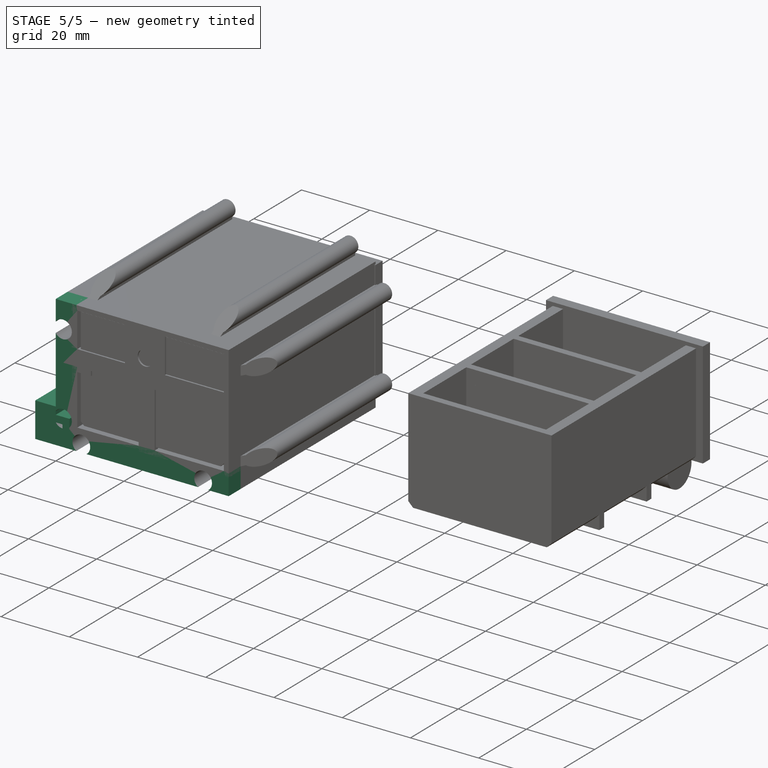
[diagram: stage 5 of 5 — iso view after this stage's code; geometry added in this stage tinted green]
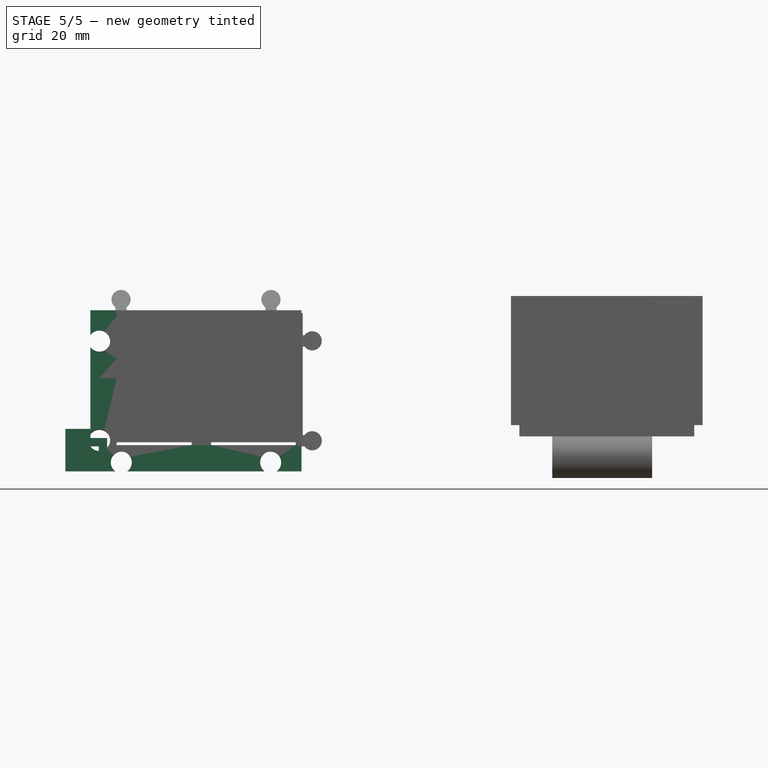
[diagram: stage 5 of 5 — front view after this stage's code; geometry added in this stage tinted green]
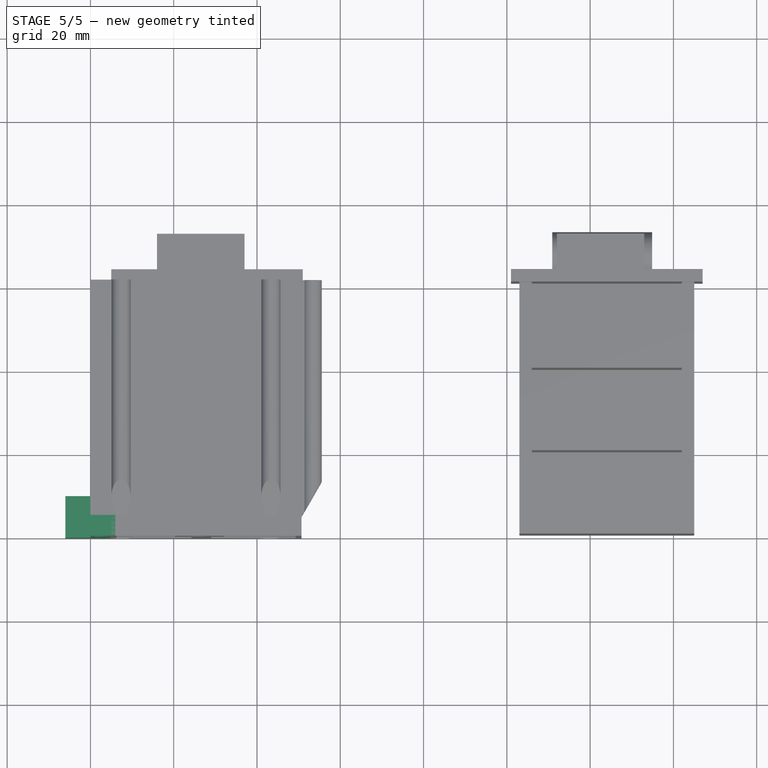
[diagram: stage 5 of 5 — top view after this stage's code; geometry added in this stage tinted green]
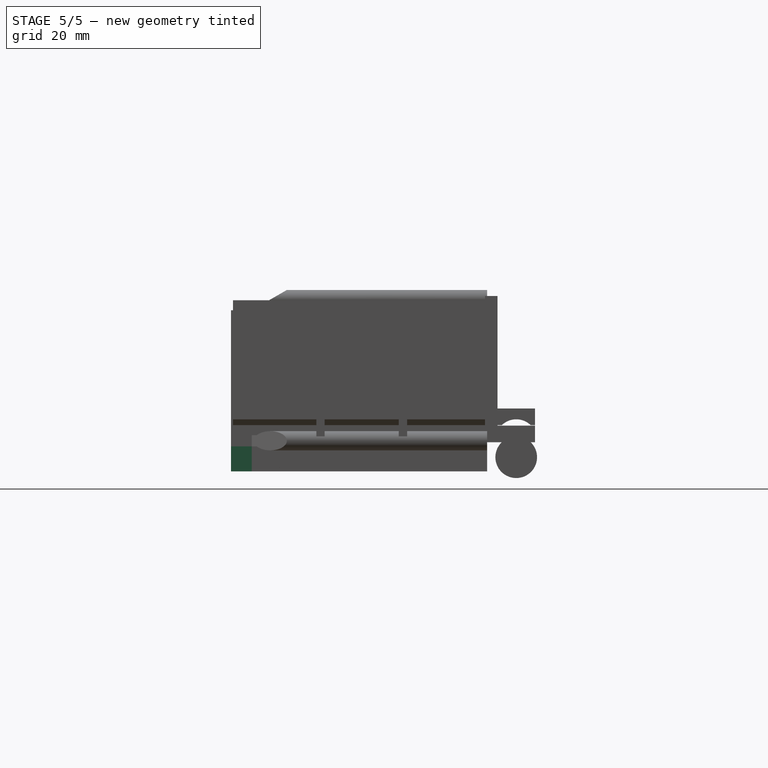
[diagram: stage 5 of 5 — right view after this stage's code; geometry added in this stage tinted green]
FEATURE [Sketcher::SketchObject] Sketch
  Placement = pos=(0,0,0) rot=(1,0,0;1.5708rad)
  sketch-geometry (28):
    g0: LineSegment StartX=0 StartY=9e-16 StartZ=0 EndX=0 EndY=6 EndZ=0
    g1: LineSegment StartX=9e-16 StartY=9 StartZ=0 EndX=9e-16 EndY=29.7 EndZ=0
    g2: LineSegment StartX=0 StartY=9e-16 StartZ=0 EndX=6 EndY=9e-16 EndZ=0
    g3: ArcOfCircle CenterX=2.12368 CenterY=7.5 CenterZ=0 NormalX=0 NormalY=0 NormalZ=1 AngleXU=0 Radius=2.6 StartAngle=3.75655 EndAngle=8.80982
    g4: ArcOfCircle CenterX=7.5 CenterY=2.12368 CenterZ=0 NormalX=0 NormalY=0 NormalZ=1 AngleXU=0 Radius=2.6 StartAngle=5.32735 EndAngle=10.3806
    g5: LineSegment StartX=9 StartY=0 StartZ=0 EndX=41.7 EndY=0 EndZ=0
    g6: ArcOfCircle CenterX=43.2 CenterY=2.12368 CenterZ=0 NormalX=0 NormalY=0 NormalZ=1 AngleXU=0 Radius=2.6 StartAngle=5.32735 EndAngle=10.3806
    g7: LineSegment StartX=44.7 StartY=0 StartZ=0 EndX=50.7 EndY=0 EndZ=0
    g8: LineSegment StartX=50.7 StartY=0 StartZ=0 EndX=50.7 EndY=6 EndZ=0
    g9: LineSegment StartX=50.7 StartY=6 StartZ=0 EndX=51.4 EndY=6 EndZ=0
    g10: LineSegment StartX=50.7 StartY=8.7 StartZ=0 EndX=51.4 EndY=8.7 EndZ=0
    g11: ArcOfCircle CenterX=53.2621 CenterY=7.35 CenterZ=0 NormalX=0 NormalY=0 NormalZ=1 AngleXU=0 Radius=2.3 StartAngle=3.76889 EndAngle=8.79748
    g12: LineSegment StartX=50.7 StartY=8.7 StartZ=0 EndX=50.7 EndY=30 EndZ=0
    g13: LineSegment StartX=50.7 StartY=30 StartZ=0 EndX=51.4 EndY=30 EndZ=0
    g14: LineSegment StartX=50.7 StartY=32.7 StartZ=0 EndX=51.4 EndY=32.7 EndZ=0
    g15: ArcOfCircle CenterX=53.2621 CenterY=31.35 CenterZ=0 NormalX=0 NormalY=0 NormalZ=1 AngleXU=0 Radius=2.3 StartAngle=3.76889 EndAngle=8.79748
    g16: LineSegment StartX=50.7 StartY=32.7 StartZ=0 EndX=50.7 EndY=38.7 EndZ=0
    g17: LineSegment StartX=50.7 StartY=38.7 StartZ=0 EndX=44.7 EndY=38.7 EndZ=0
    g18: LineSegment StartX=44.7 StartY=38.7 StartZ=0 EndX=44.7 EndY=39.4 EndZ=0
    g19: LineSegment StartX=42 StartY=38.7 StartZ=0 EndX=42 EndY=39.4 EndZ=0
    g20: ArcOfCircle CenterX=43.35 CenterY=41.2621 CenterZ=0 NormalX=0 NormalY=0 NormalZ=1 AngleXU=0 Radius=2.3 StartAngle=5.33968 EndAngle=10.3683
    g21: ArcOfCircle CenterX=2.12368 CenterY=31.2 CenterZ=0 NormalX=0 NormalY=0 NormalZ=1 AngleXU=0 Radius=2.6 StartAngle=3.75655 EndAngle=8.80982
    g22: LineSegment StartX=0 StartY=32.7 StartZ=0 EndX=0 EndY=38.7 EndZ=0
    g23: LineSegment StartX=0 StartY=38.7 StartZ=0 EndX=6 EndY=38.7 EndZ=0
    g24: LineSegment StartX=6 StartY=38.7 StartZ=0 EndX=6 EndY=39.4 EndZ=0
    g25: LineSegment StartX=8.7 StartY=38.7 StartZ=0 EndX=8.7 EndY=39.4 EndZ=0
    g26: ArcOfCircle CenterX=7.35 CenterY=41.2621 CenterZ=0 NormalX=0 NormalY=0 NormalZ=1 AngleXU=0 Radius=2.3 StartAngle=5.33968 EndAngle=10.3683
    g27: LineSegment StartX=8.7 StartY=38.7 StartZ=0 EndX=42 EndY=38.7 EndZ=0
  constraints (91):
    c: Vertical(g0)
    c: DistanceY(g0,g0) = 6
    c: Coincident(g0,g-1)
    c: Vertical(g1)
    c: DistanceY(g1,g1) = 20.7
    c: Horizontal(g2)
    c: Coincident(g2,g0)
    c: Equal(g2,g0)
    c: DistanceX(g1) = 0
    c: Radius(g3) = 2.6
    c: DistanceY(g0,g1) = 3
    c: DistanceY(g2,g5) = 0
    c: Radius(g4) = 2.6
    c: Horizontal(g5)
    c: DistanceX(g2,g5) = 3
    c: DistanceX(g5,g5) = 32.7
    c: DistanceX(g5,g7) = 3
    c: DistanceY(g5,g7) = 0
    c: Radius(g6) = 2.6
    c: Horizontal(g7)
    c: Equal(g7,g2)
    c: Vertical(g8)
    c: Coincident(g7,g8)
    c: Horizontal(g9)
    c: Equal(g7,g8)
    c: Coincident(g8,g9)
    c: DistanceX(g9,g9) = 0.7
    c: Equal(g10,g9)
    c: Horizontal(g10)
    c: DistanceX(g8,g10) = 0
    c: DistanceY(g8,g10) = 2.7
    c: Coincident(g11,g10)
    c: Coincident(g11,g9)
    c: Radius(g11) = 2.3
    c: Vertical(g12)
    c: Coincident(g12,g10)
    c: Horizontal(g13)
    c: Coincident(g13,g12)
    c: Equal(g10,g13)
    c: Horizontal(g14)
    c: Equal(g13,g14)
    c: DistanceX(g14,g12) = 0
    c: DistanceY(g13,g14) = 2.7
    c: Coincident(g14,g15)
    c: Coincident(g15,g13)
    c: Radius(g15) = 2.3
    c: Vertical(g16)
    c: Coincident(g16,g14)
    c: Equal(g16,g8)
    c: Coincident(g17,g16)
    c: Horizontal(g17)
    c: Equal(g17,g7)
    c: Vertical(g18)
    c: Equal(g18,g14)
    c: Coincident(g17,g18)
    c: Vertical(g19)
    c: Equal(g19,g18)
    c: DistanceY(g17,g19) = 0
    c: DistanceX(g19,g18) = 2.7
    c: Coincident(g20,g18)
    c: Coincident(g20,g19)
    c: Radius(g20) = 2.3
    c: DistanceX(g1,g22) = 0
    c: DistanceY(g21,g21) = 3
    c: Radius(g21) = 2.6
    c: Vertical(g22)
    c: Equal(g22,g0)
    c: Horizontal(g23)
    c: Coincident(g23,g22)
    c: Equal(g23,g17)
    c: Vertical(g24)
    c: Vertical(g25)
    c: Coincident(g24,g23)
    c: Equal(g24,g25)
    c: Equal(g24,g19)
    c: DistanceY(g23,g25) = 0
    c: DistanceX(g24,g25) = 2.7
    c: Coincident(g26,g24)
    c: Coincident(g26,g25)
    c: Radius(g26) = 2.3
    c: DistanceY(g12,g12) = 21.3
    c: Coincident(g27,g25)
    c: Coincident(g27,g19)
    c: Coincident(g6,g5)
    c: Coincident(g6,g7)
    c: Coincident(g4,g5)
    c: Coincident(g4,g2)
    c: Coincident(g3,g1)
    c: Coincident(g3,g0)
    c: Coincident(g21,g1)
    c: Coincident(g21,g22)
FEATURE [Sketcher::SketchObject] Sketch001
  Placement = pos=(0,0,0) rot=(1,0,0;1.5708rad)
  sketch-geometry (10):
    g0: LineSegment StartX=0 StartY=0 StartZ=0 EndX=0 EndY=6 EndZ=0
    g1: LineSegment StartX=0 StartY=6 StartZ=0 EndX=2 EndY=6 EndZ=0
    g2: LineSegment StartX=2 StartY=6 StartZ=0 EndX=2 EndY=4 EndZ=0
    g3: LineSegment StartX=2 StartY=4 StartZ=0 EndX=4 EndY=4 EndZ=0
    g4: LineSegment StartX=4 StartY=4 StartZ=0 EndX=4 EndY=8 EndZ=0
    g5: LineSegment StartX=4 StartY=8 StartZ=0 EndX=0 EndY=8 EndZ=0
    g6: LineSegment StartX=0 StartY=8 StartZ=0 EndX=0 EndY=10.2 EndZ=0
    g7: LineSegment StartX=0 StartY=10.2 StartZ=0 EndX=-6 EndY=10.2 EndZ=0
    g8: LineSegment StartX=0 StartY=0 StartZ=0 EndX=-6 EndY=0 EndZ=0
    g9: LineSegment StartX=-6 StartY=10.2 StartZ=0 EndX=-6 EndY=0 EndZ=0
  constraints (29):
    c: Coincident(g0,g-1)
    c: Vertical(g0)
    c: DistanceY(g0,g0) = 6
    c: Coincident(g1,g0)
    c: Horizontal(g1)
    c: DistanceX(g1,g1) = 2
    c: Vertical(g2)
    c: Coincident(g2,g1)
    c: DistanceY(g2,g2) = 2
    c: Coincident(g3,g2)
    c: Horizontal(g3)
    c: DistanceX(g3,g3) = 2
    c: Vertical(g4)
    c: Coincident(g4,g3)
    c: DistanceY(g4,g4) = 4
    c: Horizontal(g5)
    c: Coincident(g4,g5)
    c: DistanceX(g5,g5) = 4
    c: Vertical(g6)
    c: DistanceY(g6,g6) = 2.2
    c: Coincident(g6,g5)
    c: Horizontal(g7)
    c: DistanceX(g7,g7) = 6
    c: Coincident(g7,g6)
    c: Horizontal(g8)
    c: DistanceX(g8,g8) = 6
    c: Coincident(g8,g0)
    c: Coincident(g9,g7)
    c: Coincident(g9,g8)
FEATURE [Part::Extrusion] Extrude
  Base = -> Sketch
  Dir = (0,1,0)
  DirMode = 0
  FaceMakerClass = Part::FaceMakerBullseye
  LengthFwd = 61.5
  LengthRev = 0
  Solid = true
  Symmetric = false
FEATURE [Part::Extrusion] Extrude001
  Base = -> Sketch001
  Dir = (0,1,0)
  DirMode = 0
  FaceMakerClass = Part::FaceMakerBullseye
  LengthFwd = 10
  LengthRev = 0
  Solid = true
  Symmetric = false
FEATURE [Sketcher::SketchObject] Sketch002
  ExternalGeometry = -> [Extrude]
  Placement = pos=(0,0,0) rot=(1,0,0;1.5708rad)
  sketch-geometry (4):
    g0: LineSegment StartX=6.3 StartY=6.3 StartZ=0 EndX=6.3 EndY=37.3 EndZ=0
    g1: LineSegment StartX=6.3 StartY=6.3 StartZ=0 EndX=49.3 EndY=6.3 EndZ=0
    g2: LineSegment StartX=49.3 StartY=6.3 StartZ=0 EndX=49.3 EndY=37.3 EndZ=0
    g3: LineSegment StartX=6.3 StartY=37.3 StartZ=0 EndX=49.3 EndY=37.3 EndZ=0
FEATURE [Part::Extrusion] Extrude002
  Base = -> Sketch002
  Dir = (0,1,0)
  DirMode = 0
  FaceMakerClass = Part::FaceMakerBullseye
  LengthFwd = 61.5
  LengthRev = 0
  Solid = true
  Symmetric = false
FEATURE [Part::Box] Box  label="Куб"
  AttacherType = Attacher::AttachEngine3D
  Height = 4.7
  Length = 48
  Placement = pos=(2.2,0,22.4) rot=(0,0,1;0rad)
  Width = 1.5
FEATURE [Part::Box] Box001  label="Куб001"
  AttacherType = Attacher::AttachEngine3D
  Height = 4.7
  Length = 29
  Placement = pos=(29,0,7e-15) rot=(0,-1,0;1.5708rad)
  Width = 1.5
FEATURE [Part::Box] Box002  label="Куб002"
  AttacherType = Attacher::AttachEngine3D
  Height = 11.7
  Length = 13
  Placement = pos=(32,0,25) rot=(0,-1,0;1.5708rad)
  Width = 1.5
FEATURE [Part::Cylinder] Cylinder  label="Цилиндр"
  Angle = 360
  AttacherType = Attacher::AttachEngine3D
  Height = 10
  Placement = pos=(26.2,-4,34) rot=(-1,0,0;1.5708rad)
  Radius = 2.2
FEATURE [Part::Cylinder] Cylinder001  label="Цилиндр001"
  Angle = 360
  AttacherType = Attacher::AttachEngine3D
  Height = 10
  Placement = pos=(26.2,3,34) rot=(-1,0,0;1.5708rad)
  Radius = 6
FEATURE [Part::MultiFuse] Fusion
  Placement = pos=(0,0,-4) rot=(0,0,1;0rad)
  Shapes = -> [Cylinder,Cylinder001]
FEATURE [Sketcher::SketchObject] Sketch003
  Placement = pos=(0,0,0) rot=(0.57735,0.57735,0.57735;2.0944rad)
  sketch-geometry (4):
    g0: LineSegment StartX=0 StartY=38.7 StartZ=0 EndX=5 EndY=38.7 EndZ=0
    g1: LineSegment StartX=5 StartY=38.7 StartZ=0 EndX=13.6603 EndY=43.7 EndZ=0
    g2: LineSegment StartX=0 StartY=38.7 StartZ=0 EndX=0 EndY=43.7 EndZ=0
    g3: LineSegment StartX=0 StartY=43.7 StartZ=0 EndX=13.6603 EndY=43.7 EndZ=0
  constraints (12):
    c: DistanceX(g-1,g0) = 0
    c: Horizontal(g0)
    c: DistanceY(g-1,g0) = 38.7
    c: DistanceX(g0,g0) = 5
    c: Coincident(g1,g0)
    c: Angle(g1,g0) = 2.61799
    c: Vertical(g2)
    c: Coincident(g2,g0)
    c: Horizontal(g3)
    c: Coincident(g3,g2)
    c: Coincident(g3,g1)
    c: DistanceY(g2,g2) = 5
FEATURE [Part::Extrusion] Extrude003
  Base = -> Sketch003
  Dir = (1,0,0)
  DirMode = 0
  FaceMakerClass = Part::FaceMakerBullseye
  LengthFwd = 48.7
  LengthRev = 0
  Solid = true
  Symmetric = false
FEATURE [Sketcher::SketchObject] Sketch004
  Placement = pos=(0,0,0) rot=(0.57735,0.57735,0.57735;2.0944rad)
  sketch-geometry (4):
    g0: LineSegment StartX=0 StartY=38.7 StartZ=0 EndX=5 EndY=38.7 EndZ=0
    g1: LineSegment StartX=5 StartY=38.7 StartZ=0 EndX=13.6603 EndY=43.7 EndZ=0
    g2: LineSegment StartX=0 StartY=38.7 StartZ=0 EndX=0 EndY=43.7 EndZ=0
    g3: LineSegment StartX=0 StartY=43.7 StartZ=0 EndX=13.6603 EndY=43.7 EndZ=0
  constraints (12):
    c: DistanceX(g-1,g0) = 0
    c: Horizontal(g0)
    c: DistanceY(g-1,g0) = 38.7
    c: DistanceX(g0,g0) = 5
    c: Coincident(g1,g0)
    c: Angle(g1,g0) = 2.61799
    c: Vertical(g2)
    c: Coincident(g2,g0)
    c: Horizontal(g3)
    c: Coincident(g3,g2)
    c: Coincident(g3,g1)
    c: DistanceY(g2,g2) = 5
FEATURE [Part::Extrusion] Extrude004
  Base = -> Sketch004
  Dir = (1,0,0)
  DirMode = 0
  FaceMakerClass = Part::FaceMakerBullseye
  LengthFwd = 48.7
  LengthRev = 0
  Placement = pos=(12,0,41) rot=(0,1,0;1.5708rad)
  Solid = true
  Symmetric = false
FEATURE [Part::Cut] Cut
  Base = -> Extrude
  Tool = -> Extrude002
FEATURE [Part::Cut] Cut001
  Base = -> Cut
  Tool = -> Extrude003
FEATURE [Part::Cut] Cut002
  Base = -> Cut001
  Tool = -> Extrude004
FEATURE [Part::MultiFuse] Fusion001
  Shapes = -> [Cut002,Box001,Box,Box002]
FEATURE [Part::Cut] Cut003
  Base = -> Fusion001
  Tool = -> Fusion
FEATURE [Part::Box] Box003  label="Куб003"
  AttacherType = Attacher::AttachEngine3D
  Height = 1.5
  Length = 42
  Placement = pos=(7,2,7) rot=(0,0,1;0rad)
  Width = 60
FEATURE [Part::Box] Box004  label="Куб004"
  AttacherType = Attacher::AttachEngine3D
  Height = 30
  Length = 3
  Placement = pos=(7,2,7) rot=(0,0,1;0rad)
  Width = 60
FEATURE [Part::MultiFuse] Fusion002
  Shapes = -> [Box005,Box003,Box004,Box006,Box007,Box008]
FEATURE [Part::Chamfer] Chamfer
  Base = -> Fusion002
  Edges = 6 edges r=1.4: [Edge3,Edge10,Edge14,Edge16,Edge18,Edge39]
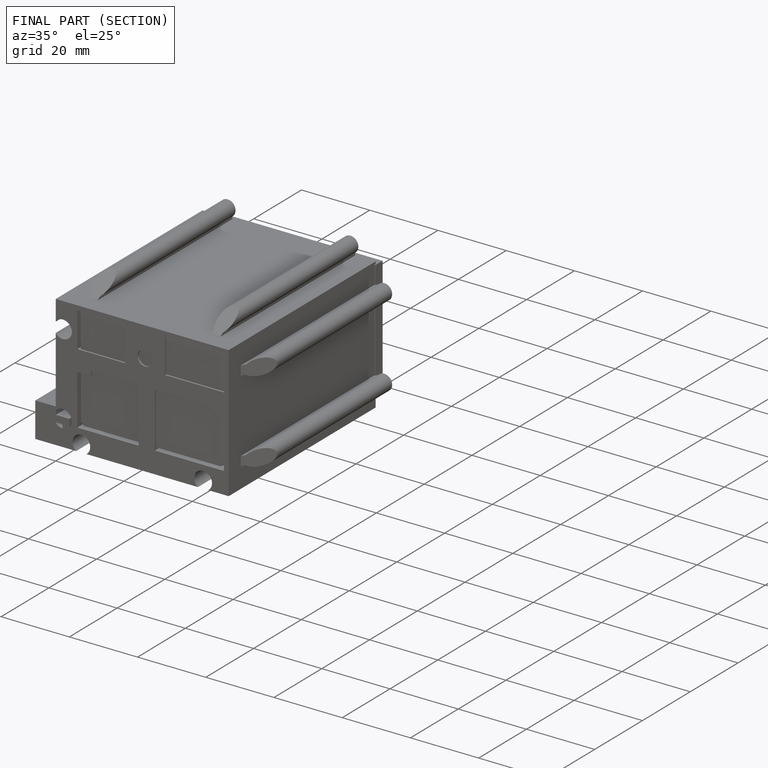
[diagram: finished part — half-section view (interior)]
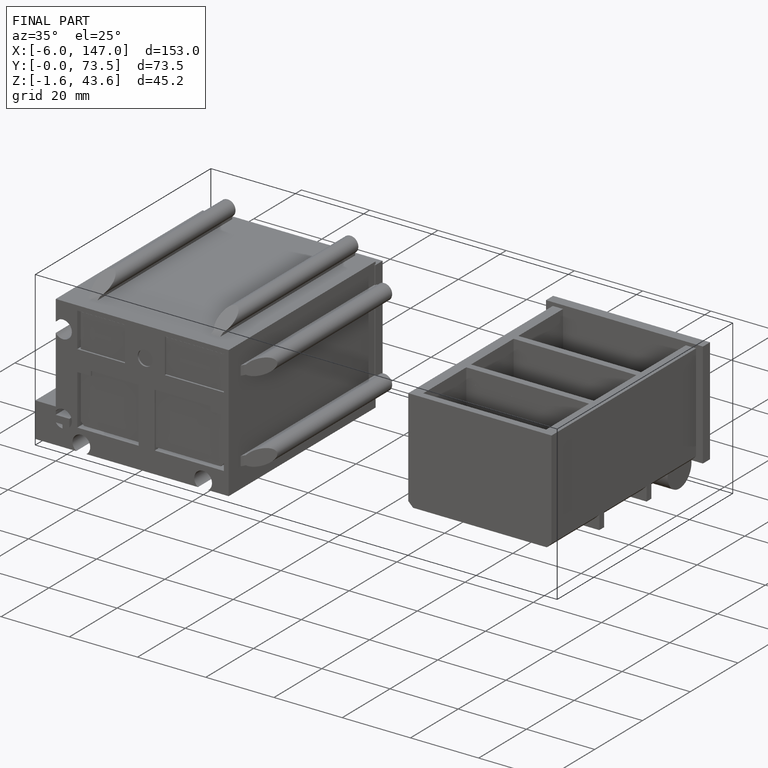
[diagram: finished part — iso view with bounding-box wireframe]
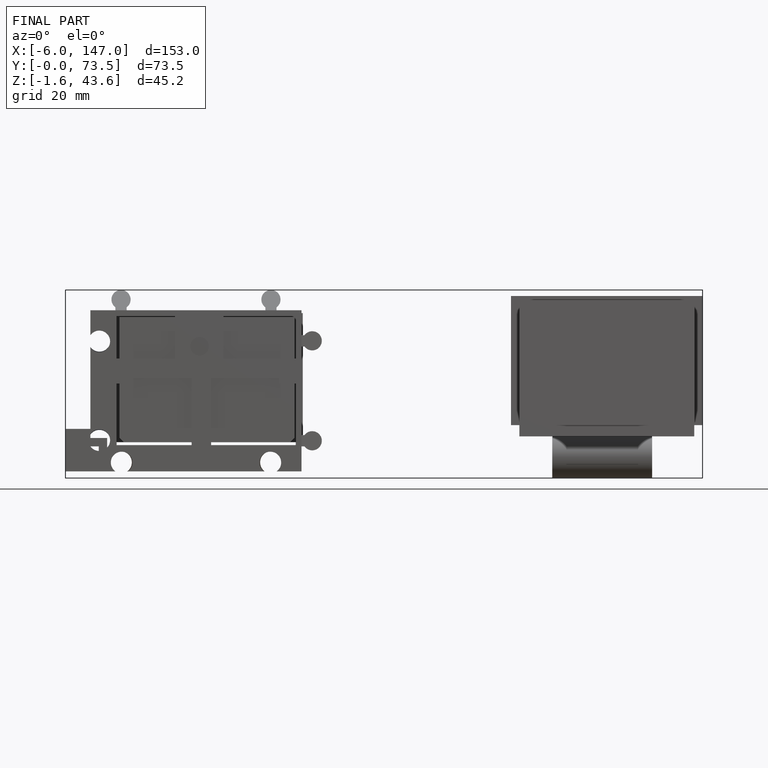
[diagram: finished part — front view with bounding-box wireframe]
